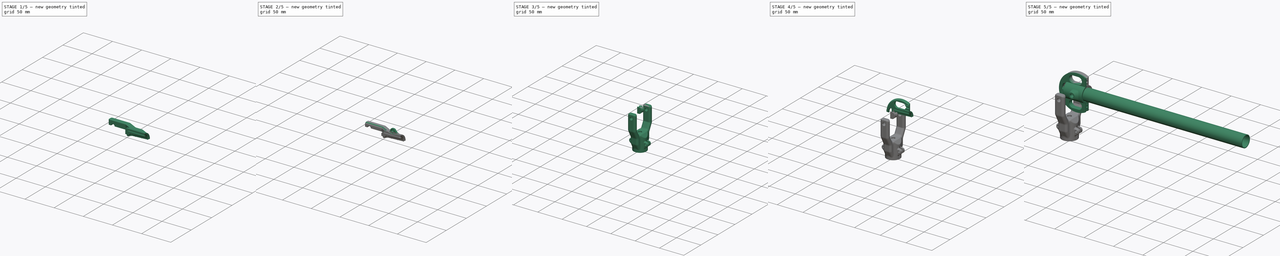
[diagram: build sequence overview — one tinted view per stage of 5, left to right]
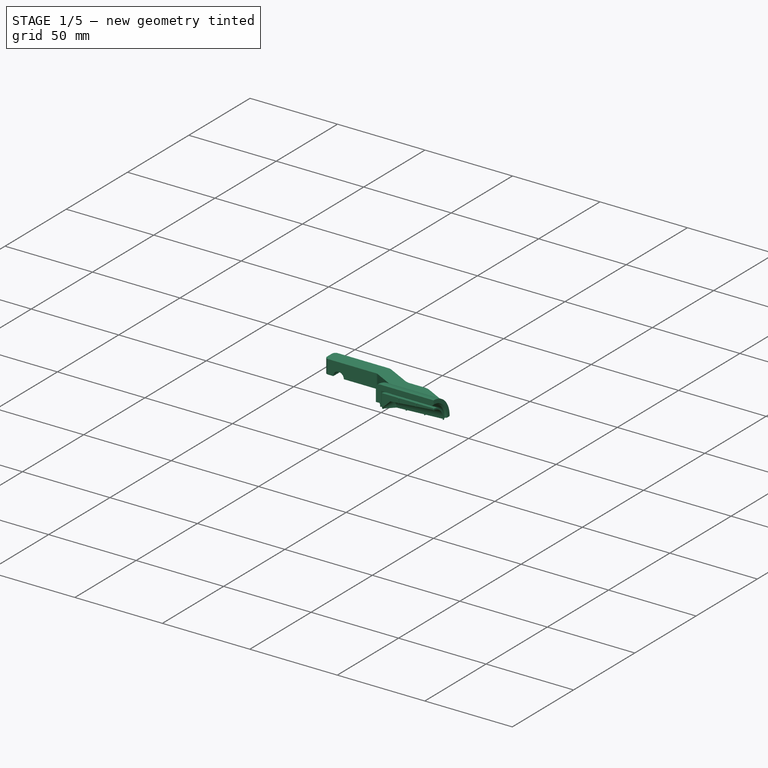
[diagram: stage 1 of 5 — iso view after this stage's code; geometry added in this stage tinted green]
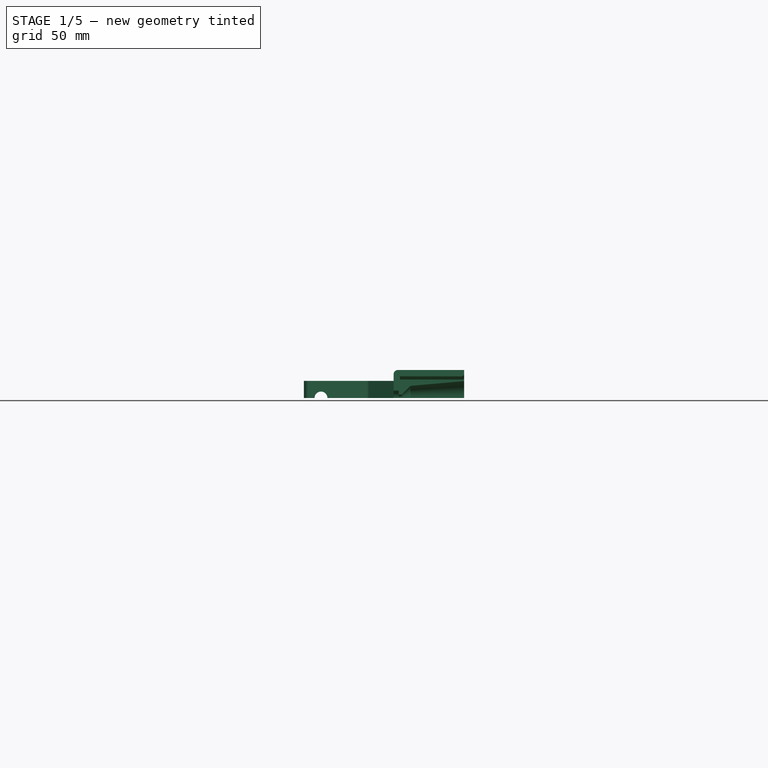
[diagram: stage 1 of 5 — front view after this stage's code; geometry added in this stage tinted green]
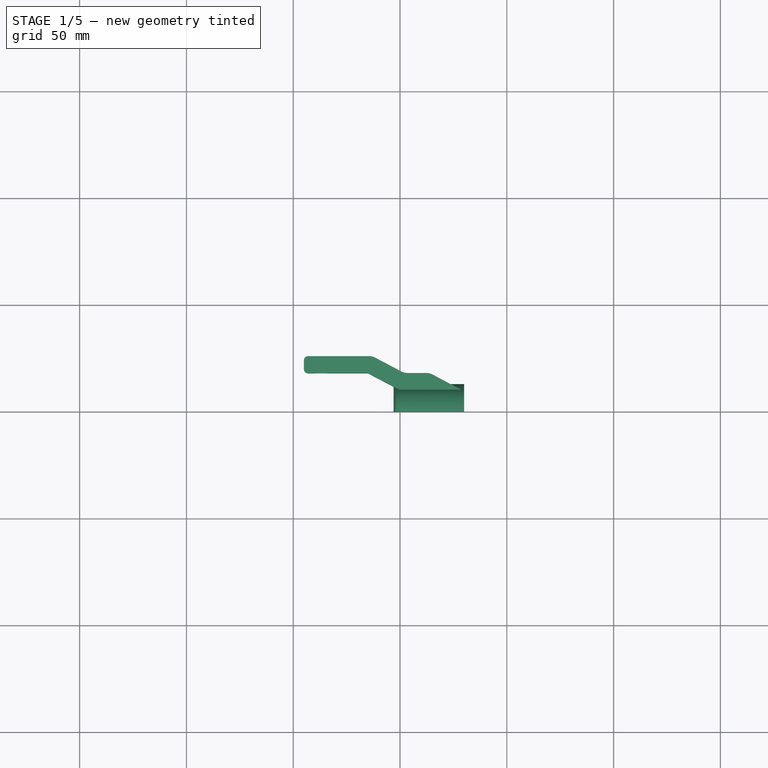
[diagram: stage 1 of 5 — top view after this stage's code; geometry added in this stage tinted green]
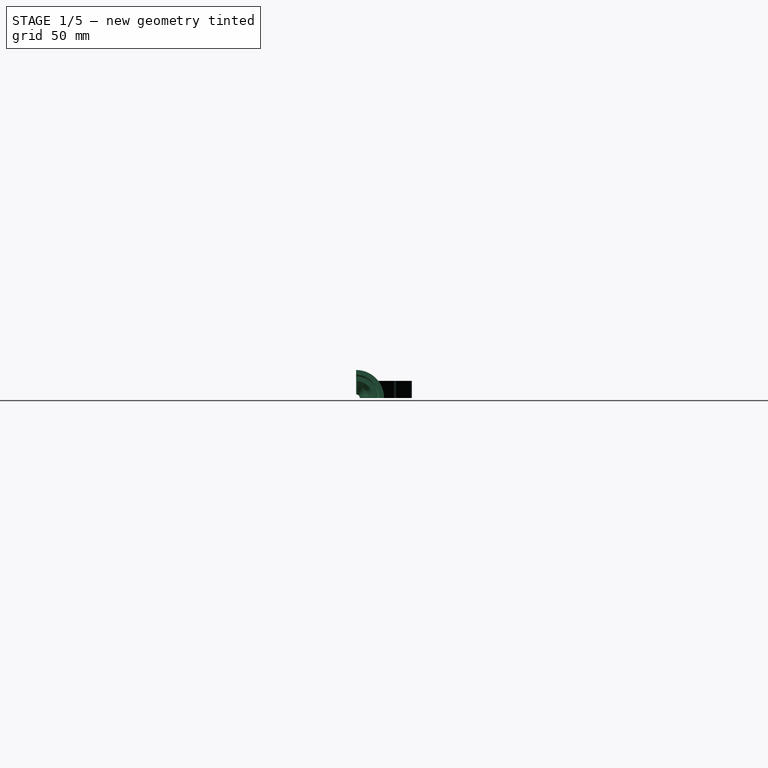
[diagram: stage 1 of 5 — right view after this stage's code; geometry added in this stage tinted green]
FCSTD DOCUMENT  (FreeCAD 1.0R39109 (Git))
Label: tube_cap
License: Creative Commons Attribution 4.0
LicenseURL: https://creativecommons.org/licenses/by/4.0/
objects: Sketcher::SketchObject×24, PartDesign::Pocket×13, PartDesign::Body×9, PartDesign::Pad×5, PartDesign::Fillet×5, PartDesign::Revolution×4, PartDesign::Mirrored×4, PartDesign::FeatureBase×4, PartDesign::MultiTransform×2, App::VarSet×1, PartDesign::Groove×1, PartDesign::AdditiveLoft×1
note: 164 computed .brp shape members not serialized (recipe doc carries the construction recipe); baked Part::Feature solids carry a one-line shape summary decoded from their .brp

FEATURE [App::VarSet] VarSet
  M3_d = 3.3
  M3_lh = 5.8
  M3_th = 2.7
  cone_angl = 5
  f_rg = 6
  f_rs = 2
  f_wi = 16.6
  j = 0.1
  j_ca_th = 8
  j_cut_r = 6
  j_f_id = 20.2
  j_f_len = 30
  j_f_od = 26.2
  j_m_id = 11.4
  j_m_od = 17.4
  j_pul_d = 60
  j_rot_x = 15
  j_t_d = 19.1
  j_wi = 16.1
  p_re = 3
  p_th = 3
  r = 2
  t_id = 17.6
  t_len = 300
  t_od = 20
  t_th = 1.2
  th = 3
  expr: f_wi = j_wi + 0.5 mm
  expr: j_f_id = t_od + j * 2
  expr: j_f_od = j_f_id + th * 2
  expr: j_m_id = j_m_od - th * 2
  expr: j_m_od = t_id - j * 2
  expr: j_t_d = j_f_od / 2 + j_cut_r
  expr: j_wi = j_f_id / 2 + 6 mm
  expr: t_id = t_od - t_th * 2
FEATURE [Sketcher::SketchObject] Sketch001
  ArcFitTolerance = 1e-06
  AttachmentSupport = -> [XY_Plane001]
  FullyConstrained = true
  MakeInternals = false
  MapMode = 5
  expr: Constraints[10] = VarSet.j_f_od / 2
  expr: Constraints[11] = VarSet.j_f_len
  expr: Constraints[12] = VarSet.th * 1
  expr: Constraints[13] = VarSet.j_f_id / 2
  expr: Constraints[20] = VarSet.r
  expr: Constraints[30] = VarSet.j_m_od / 2
  expr: Constraints[35] = VarSet.j_m_id / 2
  expr: Constraints[36] = 1.7
  sketch-geometry (19):
    g0: LineSegment StartX=4.85388 StartY=5.7 StartZ=0 EndX=30 EndY=7.9 EndZ=0
    g1: LineSegment StartX=30 StartY=7.9 StartZ=0 EndX=30 EndY=8.7 EndZ=0
    g2: LineSegment StartX=30 StartY=8.7 StartZ=0 EndX=0 EndY=8.7 EndZ=0
    g3: LineSegment StartX=0 StartY=8.7 StartZ=0 EndX=0 EndY=10.1 EndZ=0
    g4: LineSegment StartX=0 StartY=10.1 StartZ=0 EndX=29.2 EndY=10.1 EndZ=0
    g5: LineSegment StartX=30 StartY=10.9 StartZ=0 EndX=30 EndY=13.1 EndZ=0
    g6: LineSegment StartX=30 StartY=13.1 StartZ=0 EndX=-1 EndY=13.1 EndZ=0
    g7: LineSegment StartX=-3 StartY=11.1 StartZ=0 EndX=-3 EndY=3.5 EndZ=0
    g8: GeomPoint [constr] X=30 Y=13.1 Z=0
    g9: ArcOfCircle CenterX=-1 CenterY=11.1 CenterZ=0 NormalX=0 NormalY=0 NormalZ=1 AngleXU=0 Radius=2 StartAngle=1.5708 EndAngle=3.14159
    g10: GeomPoint [constr] X=-3 Y=13.1 Z=0
    g11: ArcOfCircle [constr] CenterX=29.2 CenterY=10.9 CenterZ=0 NormalX=0 NormalY=0 NormalZ=1 AngleXU=0 Radius=0.8 StartAngle=4.71239 EndAngle=6.28319
    g12: GeomPoint [constr] X=30 Y=10.1 Z=0
    g13: LineSegment StartX=29.2 StartY=10.1 StartZ=0 EndX=30 EndY=10.9 EndZ=0
    g14: GeomPoint [constr] X=30 Y=8.7 Z=0
    g15: LineSegment StartX=4.85388 StartY=5.7 StartZ=0 EndX=0.853885 EndY=1.7 EndZ=0
    g16: LineSegment StartX=0.853885 StartY=1.7 StartZ=0 EndX=-0.6 EndY=1.7 EndZ=0
    g17: LineSegment StartX=-3 StartY=3.5 StartZ=0 EndX=-0.6 EndY=3.5 EndZ=0
    g18: LineSegment StartX=-0.6 StartY=3.5 StartZ=0 EndX=-0.6 EndY=1.7 EndZ=0
  constraints (51):
    c: PointOnObject(g2,g-2)
    c: Horizontal(g2)
    c: Coincident(g3,g2)
    c: PointOnObject(g3,g-2)
    c: Coincident(g4,g3)
    c: Horizontal(g4)
    c: Horizontal(g6)
    c: Vertical(g7)
    c: Vertical(g8,g12)
    c: Vertical(g1)
    c: DistanceY(g-1,g10) = 13.1
    c: DistanceX(g-1,g8) = 30
    c: DistanceX(g10,g-1) = 3
    c: DistanceY(g-1,g12) = 10.1
    c: PointOnObject(g8,g6)
    c: PointOnObject(g8,g5)
    c: PointOnObject(g10,g6)
    c: PointOnObject(g10,g7)
    c: Tangent(g6,g9) = -1.5708
    c: Tangent(g7,g9) = -1.5708
    c: Radius(g9) = 2
    c: PointOnObject(g12,g4)
    c: PointOnObject(g12,g5)
    c: Tangent(g4,g11) = -1.5708
    c: Tangent(g5,g11) = -1.5708
    c: Coincident(g13,g4)
    c: Coincident(g13,g5)
    c: Radius(g11) = 0.8
    c: Coincident(g0,g1)
    c: Vertical(g14,g8)
    c: DistanceY(g-1,g14) = 8.7
    c: PointOnObject(g14,g2)
    c: PointOnObject(g14,g1)
    c: Coincident(g16,g15)
    c: Horizontal(g16)
    c: DistanceY(g-1,g15) = 5.7
    c: DistanceY(g-1,g15) = 1.7
    c: Coincident(g2,g1)
    c: PointOnObject(g6,g5)
    c: PointOnObject(g5,g6)
    c: Distance(g1,g1) = 0.8
    c: Angle(g15,g-2) = 0.785398
    c: Angle(g2,g0) = 0.0872665
    c: Coincident(g15,g0)
    c: Horizontal(g17)
    c: Coincident(g18,g17)
    c: Vertical(g18)
    c: Coincident(g16,g18)
    c: DistanceY(g-1,g7) = 3.5
    c: Distance(g17,g17) = 2.4
    c: Coincident(g17,g7)
FEATURE [PartDesign::Revolution] Revolution
  Angle = 90
  Angle2 = 60
  Axis = (1,0,0)
  Base = (0,0,0)
  Profile = -> Sketch001
  ReferenceAxis = -> Sketch001 [H_Axis]
  Refine = true
  Suppressed = false
  Type = 0
FEATURE [PartDesign::Body] Body002  label="lockingcone"
  AllowCompound = false
  Group = -> [Sketch003,Revolution001,Sketch004,Pocket001]
  Origin = -> Origin004
  Placement = pos=(7,0,0) rot=(0,0,1;0rad)
  Tip = -> Pocket001
FEATURE [PartDesign::Pocket] Pocket
  BaseFeature = -> Revolution
  Direction = (-1,0,0)
  Length = 9.7
  Length2 = 5
  Profile = -> Sketch002
  ReferenceAxis = -> Sketch002 [N_Axis]
  Refine = true
  Reversed = true
  Suppressed = false
  Type = 0
  expr: Length = VarSet.j_f_len / 3 - 0.3 mm
FEATURE [PartDesign::Body] Body009  label="puley"
  AllowCompound = false
  Group = -> [Sketch024,Revolution003]
  Origin = -> Origin014
  Tip = -> Revolution003
FEATURE [Sketcher::SketchObject] Sketch027
  ArcFitTolerance = 1e-06
  AttachmentSupport = -> [XZ_Plane008]
  FullyConstrained = true
  MakeInternals = false
  MapMode = 5
  Placement = pos=(0,0,0) rot=(1,0,0;1.5708rad)
  sketch-geometry (2):
    g0: ArcOfCircle CenterX=-37 CenterY=0 CenterZ=0 NormalX=0 NormalY=0 NormalZ=1 AngleXU=0 Radius=3 StartAngle=0 EndAngle=3.14159
    g1: LineSegment StartX=-40 StartY=4e-16 StartZ=0 EndX=-34 EndY=4e-16 EndZ=0
  constraints (7):
    c: PointOnObject(g0,g-1)
    c: Horizontal(g1)
    c: Coincident(g0,g1)
    c: Coincident(g0,g1)
    c: PointOnObject(g0,g1)
    c: Radius(g0) = 3
    c: DistanceX(g-4,g0) = 8
FEATURE [PartDesign::Mirrored] Mirrored002
  MirrorPlane = -> YZ_Plane010
  Placement = pos=(9.8e-15,0,-44) rot=(0,1,0;1.5708rad)
  Refine = true
  Suppressed = false
  TransformMode = 0
FEATURE [PartDesign::Mirrored] Mirrored003
  MirrorPlane = -> XZ_Plane010
  Placement = pos=(9.8e-15,0,-44) rot=(0,1,0;1.5708rad)
  Refine = true
  Suppressed = false
  TransformMode = 0
FEATURE [Sketcher::SketchObject] Sketch028
  ArcFitTolerance = 1e-06
  AttachmentOffset = pos=(0,0,10) rot=(0,0,1;0rad)
  AttachmentSupport = -> [YZ_Plane001]
  FullyConstrained = true
  MakeInternals = false
  MapMode = 5
  Placement = pos=(10,0,0) rot=(0.57735,0.57735,0.57735;2.0944rad)
  expr: .AttachmentOffset.Base.z = VarSet.j_f_len / 3
  sketch-geometry (6):
    g0: LineSegment StartX=0 StartY=0 StartZ=0 EndX=0 EndY=9.7 EndZ=0
    g1: LineSegment StartX=0 StartY=9.7 StartZ=0 EndX=0.5 EndY=9.7 EndZ=0
    g2: LineSegment StartX=0.5 StartY=9.7 StartZ=0 EndX=0.5 EndY=0.5 EndZ=0
    g3: LineSegment StartX=0.5 StartY=0.5 StartZ=0 EndX=9.7 EndY=0.5 EndZ=0
    g4: LineSegment StartX=9.7 StartY=0.5 StartZ=0 EndX=9.7 EndY=0 EndZ=0
    g5: LineSegment StartX=9.7 StartY=0 StartZ=0 EndX=0 EndY=0 EndZ=0
  constraints (17):
    c: Coincident(g-1,g0)
    c: PointOnObject(g0,g-2)
    c: Coincident(g0,g1)
    c: Horizontal(g1)
    c: Coincident(g1,g2)
    c: Vertical(g2)
    c: Coincident(g2,g3)
    c: Horizontal(g3)
    c: Coincident(g3,g4)
    c: Vertical(g4)
    c: PointOnObject(g5,g-1)
    c: Coincident(g5,g0)
    c: Distance(g1,g1) = 0.5
    c: DistanceY(g0,g0) = 9.7
    c: Coincident(g4,g5)
    c: Equal(g1,g4)
    c: Equal(g0,g5)
FEATURE [PartDesign::Pocket] Pocket014
  BaseFeature = -> Pocket
  Direction = (-1,0,0)
  Length = 9.7
  Length2 = 5
  Profile = -> Sketch028
  ReferenceAxis = -> Sketch028 [N_Axis]
  Refine = true
  Reversed = true
  Suppressed = false
  Type = 0
  expr: Length = VarSet.j_f_len / 3 - 0.3 mm
FEATURE [Sketcher::SketchObject] Sketch029
  ArcFitTolerance = 1e-06
  AttachmentOffset = pos=(0,0,20) rot=(0,0,1;0rad)
  AttachmentSupport = -> [YZ_Plane001]
  FullyConstrained = true
  MakeInternals = false
  MapMode = 5
  Placement = pos=(20,0,0) rot=(0.57735,0.57735,0.57735;2.0944rad)
  expr: .AttachmentOffset.Base.z = 2 * VarSet.j_f_len / 3
  sketch-geometry (6):
    g0: LineSegment StartX=0 StartY=0 StartZ=0 EndX=0 EndY=9.7 EndZ=0
    g1: LineSegment StartX=0 StartY=9.7 StartZ=0 EndX=0.5 EndY=9.7 EndZ=0
    g2: LineSegment StartX=0.5 StartY=9.7 StartZ=0 EndX=0.5 EndY=0.5 EndZ=0
    g3: LineSegment StartX=0.5 StartY=0.5 StartZ=0 EndX=9.7 EndY=0.5 EndZ=0
    g4: LineSegment StartX=9.7 StartY=0.5 StartZ=0 EndX=9.7 EndY=0 EndZ=0
    g5: LineSegment StartX=9.7 StartY=0 StartZ=0 EndX=0 EndY=0 EndZ=0
  constraints (17):
    c: Coincident(g-1,g0)
    c: PointOnObject(g0,g-2)
    c: Coincident(g0,g1)
    c: Horizontal(g1)
    c: Coincident(g1,g2)
    c: Vertical(g2)
    c: Coincident(g2,g3)
    c: Horizontal(g3)
    c: Coincident(g3,g4)
    c: Vertical(g4)
    c: PointOnObject(g5,g-1)
    c: Coincident(g5,g0)
    c: Distance(g1,g1) = 0.5
    c: DistanceY(g0,g0) = 9.7
    c: Coincident(g4,g5)
    c: Equal(g1,g4)
    c: Equal(g0,g5)
FEATURE [PartDesign::Pocket] Pocket015
  BaseFeature = -> Pocket014
  Direction = (-1,0,0)
  Length = 9.7
  Length2 = 5
  Profile = -> Sketch029
  ReferenceAxis = -> Sketch029 [N_Axis]
  Refine = true
  Reversed = true
  Suppressed = false
  Type = 0
  expr: Length = VarSet.j_f_len / 3 - 0.3 mm
FEATURE [PartDesign::Body] Body007  label="Cable_Junction_Full"
  AllowCompound = false
  Group = -> [Clone001,MultiTransform,Mirrored,Mirrored001,Sketch021,Pocket011]
  Origin = -> Origin012
  Tip = -> Pocket011
FEATURE [PartDesign::FeatureBase] Clone002
  BaseFeature = -> Body001
  Suppressed = false
FEATURE [PartDesign::Pad] Pad007
  BaseFeature = -> Clone002
  Direction = (0,0,1)
  Length = 8
  Length2 = 10
  Profile = -> Sketch023
  ReferenceAxis = -> Sketch023 [N_Axis]
  Refine = true
  Suppressed = false
  Type = 0
FEATURE [Sketcher::SketchObject] Sketch026
  ArcFitTolerance = 1e-06
  AttachmentOffset = pos=(0,0,-1.8) rot=(0,0,1;0rad)
  AttachmentSupport = -> [XZ_Plane008]
  ExternalGeometry = -> [Pad007]
  FullyConstrained = true
  MakeInternals = false
  MapMode = 5
  Placement = pos=(0,1.8,-4e-16) rot=(1,0,0;1.5708rad)
  expr: .AttachmentOffset.Base.z = -(VarSet.p_th / 2 + 0.3 mm)
  expr: Constraints[14] = VarSet.j_f_len - 14 mm
  expr: Constraints[19] = VarSet.M3_d
  sketch-geometry (9):
    g0: LineSegment StartX=11 StartY=7.9 StartZ=0 EndX=11 EndY=15.1 EndZ=0
    g1: LineSegment StartX=15 StartY=19.1 StartZ=0 EndX=15.9091 EndY=19.1 EndZ=0
    g2: LineSegment StartX=19 StartY=17.639 StartZ=0 EndX=27 EndY=7.9 EndZ=0
    g3: LineSegment StartX=27 StartY=7.9 StartZ=0 EndX=11 EndY=7.9 EndZ=0
    g4: ArcOfCircle CenterX=15 CenterY=15.1 CenterZ=0 NormalX=0 NormalY=0 NormalZ=1 AngleXU=0 Radius=4 StartAngle=1.5708 EndAngle=3.14159
    g5: GeomPoint [constr] X=11 Y=19.1 Z=0
    g6: ArcOfCircle CenterX=15.9091 CenterY=15.1 CenterZ=0 NormalX=0 NormalY=0 NormalZ=1 AngleXU=0 Radius=4 StartAngle=0.687679 EndAngle=1.5708
    g7: GeomPoint [constr] X=17.7999 Y=19.1 Z=0
    g8: Circle CenterX=15 CenterY=15.1 CenterZ=0 NormalX=0 NormalY=0 NormalZ=1 AngleXU=0 Radius=1.65
  constraints (23):
    c: Vertical(g0)
    c: Horizontal(g1)
    c: Coincident(g2,g3)
    c: Coincident(g3,g0)
    c: Horizontal(g3)
    c: PointOnObject(g5,g1)
    c: PointOnObject(g5,g0)
    c: Tangent(g1,g4) = 1.5708
    c: Tangent(g0,g4) = 1.5708
    c: PointOnObject(g7,g1)
    c: PointOnObject(g7,g2)
    c: Tangent(g1,g6) = 1.5708
    c: Tangent(g2,g6) = 1.5708
    c: Equal(g4,g6)
    c: DistanceX(g3,g3) = 16
    c: DistanceX(g0,g2) = 8
    c: PointOnObject(g2,g-3)
    c: Radius(g4) = 4
    c: DistanceX(g-4,g0) = 14
    c: Diameter(g8) = 3.3
    c: DistanceY(g-5,g8) = 2
    c: DistanceX(g0,g8) = 4
    c: DistanceY(g8,g1) = 4
FEATURE [PartDesign::Pocket] Pocket013
  BaseFeature = -> Pad007
  Direction = (0,1,-2e-16)
  Length = 5
  Length2 = 5
  Profile = -> Sketch027
  ReferenceAxis = -> Sketch027 [N_Axis]
  Refine = true
  Suppressed = false
  Type = 1
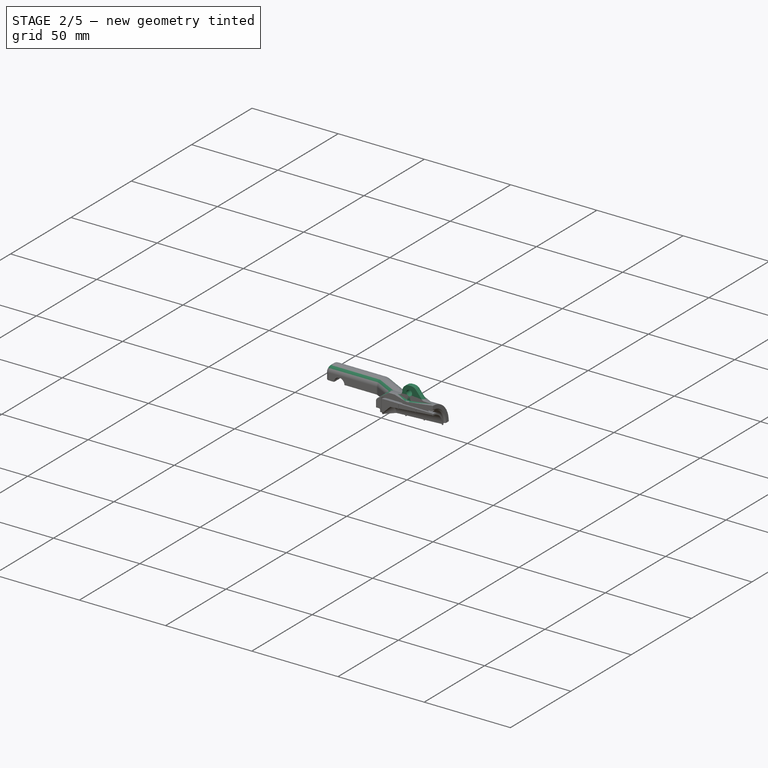
[diagram: stage 2 of 5 — iso view after this stage's code; geometry added in this stage tinted green]
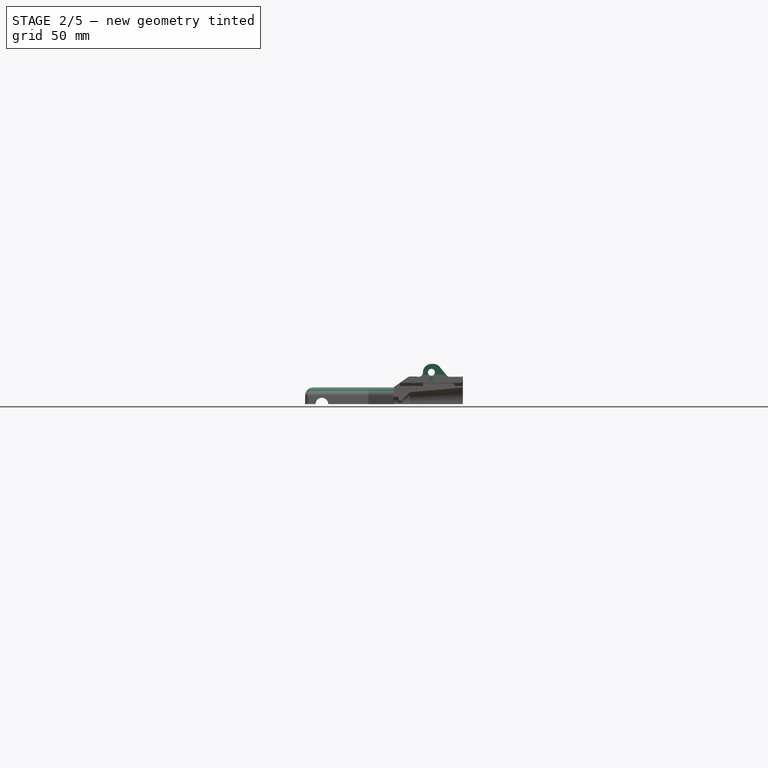
[diagram: stage 2 of 5 — front view after this stage's code; geometry added in this stage tinted green]
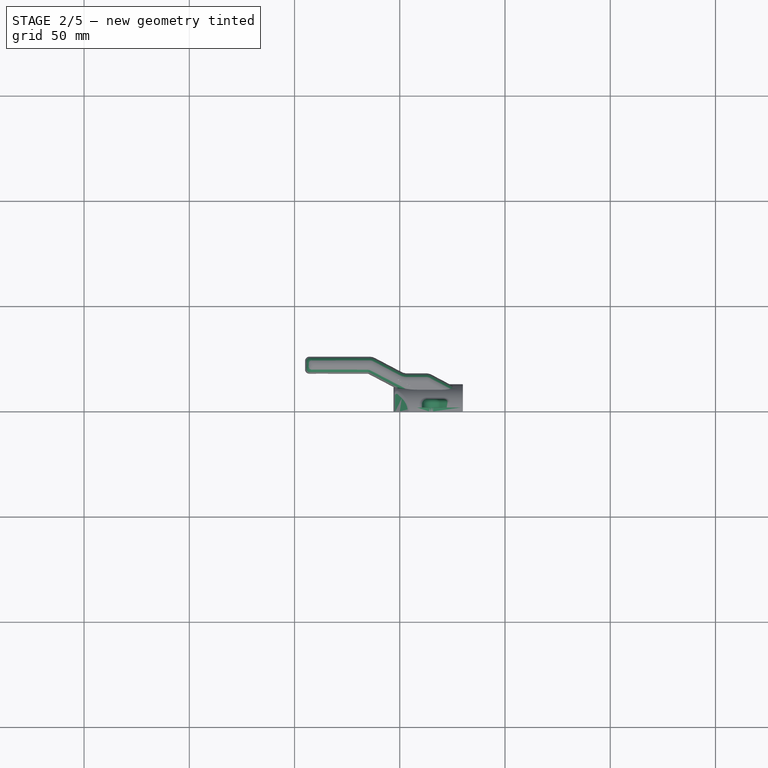
[diagram: stage 2 of 5 — top view after this stage's code; geometry added in this stage tinted green]
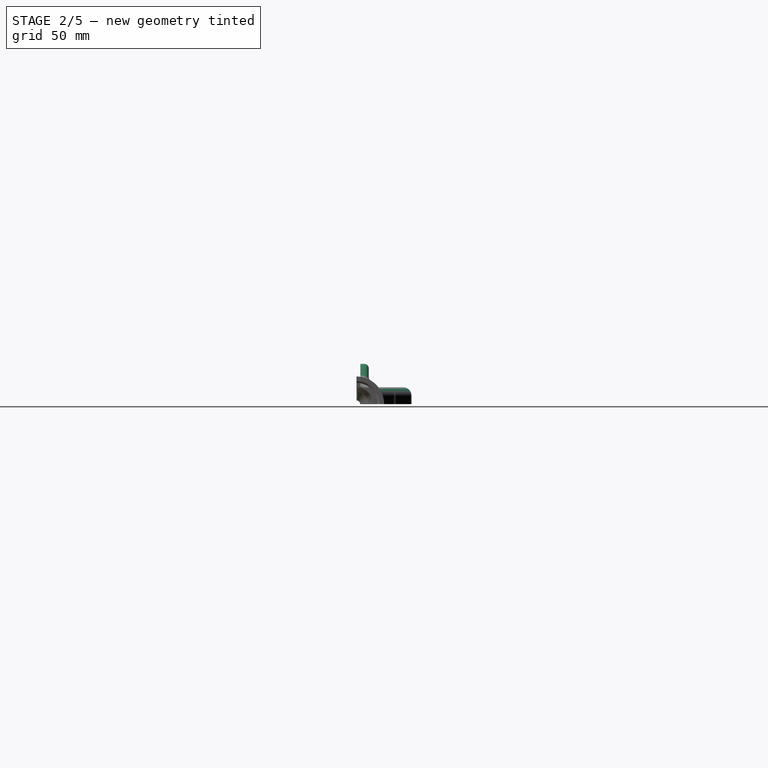
[diagram: stage 2 of 5 — right view after this stage's code; geometry added in this stage tinted green]
FEATURE [PartDesign::Pad] Pad008
  BaseFeature = -> Pocket013
  Direction = (0,-1,2e-16)
  Length = 4
  Length2 = 10
  Profile = -> Sketch026
  ReferenceAxis = -> Sketch026 [N_Axis]
  Refine = true
  Reversed = true
  Suppressed = false
  Type = 0
FEATURE [Sketcher::SketchObject] Sketch030
  ArcFitTolerance = 1e-06
  AttachmentOffset = pos=(0,0,-1.8) rot=(0,0,1;0rad)
  AttachmentSupport = -> [XZ_Plane008]
  ExternalGeometry = -> [Pad008]
  FullyConstrained = true
  MakeInternals = false
  MapMode = 5
  Placement = pos=(0,1.8,-4e-16) rot=(1,0,0;1.5708rad)
  expr: .AttachmentOffset.Base.z = -(VarSet.p_th / 2 + 0.3 mm)
  sketch-geometry (7):
    g0: ArcOfCircle CenterX=15 CenterY=15.1 CenterZ=0 NormalX=0 NormalY=0 NormalZ=1 AngleXU=0 Radius=4 StartAngle=1.16629 EndAngle=2.41073
    g1: LineSegment StartX=15.8351 StartY=11.1881 StartZ=0 EndX=29.8351 EndY=13.1 EndZ=0
    g2: LineSegment StartX=29.8351 StartY=13.1 StartZ=0 EndX=16.5743 EndY=18.7772 EndZ=0
    g3: ArcOfCircle CenterX=15 CenterY=15.1 CenterZ=0 NormalX=0 NormalY=0 NormalZ=1 AngleXU=0 Radius=4 StartAngle=4.41687 EndAngle=4.9227
    g4: LineSegment StartX=12.0216 StartY=17.77 StartZ=0 EndX=7.83505 EndY=13.1 EndZ=0
    g5: LineSegment StartX=7.83505 StartY=13.1 StartZ=0 EndX=13.8351 EndY=11.2734 EndZ=0
    g6: LineSegment [constr] StartX=-1 StartY=13.1 StartZ=0 EndX=30 EndY=13.1 EndZ=0
  constraints (17):
    c: Coincident(g0,g-3)
    c: Diameter(g0) = 8
    c: Coincident(g2,g1)
    c: DistanceX(g1,g1) = 14
    c: Tangent(g0,g2) = -1.5708
    c: Coincident(g3,g1) = -1.5708
    c: Equal(g3,g0)
    c: Coincident(g5,g4)
    c: Tangent(g4,g0) = -1.5708
    c: Tangent(g5,g3) = -1.5708
    c: Coincident(g3,g0)
    c: DistanceX(g4,g1) = 8
    c: DistanceX(g4,g3) = 6
    c: Coincident(g6,g-4)
    c: Coincident(g6,g-5)
    c: PointOnObject(g4,g6)
    c: PointOnObject(g1,g6)
FEATURE [PartDesign::Pocket] Pocket016
  BaseFeature = -> Pad008
  Direction = (0,1,-2e-16)
  Length = 5
  Length2 = 5
  Profile = -> Sketch030
  ReferenceAxis = -> Sketch030 [N_Axis]
  Refine = true
  Reversed = true
  Suppressed = false
  Type = 0
FEATURE [Sketcher::SketchObject] Sketch031
  ArcFitTolerance = 1e-06
  AttachmentSupport = -> [XZ_Plane008]
  ExternalGeometry = -> [Pocket016]
  FullyConstrained = true
  MakeInternals = false
  MapMode = 5
  Placement = pos=(0,0,0) rot=(1,0,0;1.5708rad)
  sketch-geometry (3):
    g0: LineSegment StartX=-9.42578 StartY=3.5 StartZ=0 EndX=4.28444 EndY=13.1 EndZ=0
    g1: LineSegment StartX=4.28444 StartY=13.1 StartZ=0 EndX=-9.42578 EndY=13.1 EndZ=0
    g2: LineSegment StartX=-9.42578 StartY=13.1 StartZ=0 EndX=-9.42578 EndY=3.5 EndZ=0
  constraints (9):
    c: PointOnObject(g0,g-4)
    c: PointOnObject(g0,g-5)
    c: Coincident(g1,g0)
    c: Horizontal(g1)
    c: Coincident(g2,g1)
    c: Coincident(g2,g0)
    c: Vertical(g2)
    c: PointOnObject(g-3,g0)
    c: Angle(g1,g0) = 0.610865
FEATURE [PartDesign::Pocket] Pocket017
  BaseFeature = -> Pocket016
  Direction = (0,1,-2e-16)
  Length = 10
  Length2 = 5
  Profile = -> Sketch031
  ReferenceAxis = -> Sketch031 [N_Axis]
  Refine = true
  Suppressed = false
  Type = 0
FEATURE [PartDesign::Fillet] Fillet
  Base = -> Pocket017 [Edge135]
  BaseFeature = -> Pocket017
  Radius = 2
  Refine = true
  SupportTransform = false
  Suppressed = false
  UseAllEdges = false
FEATURE [PartDesign::Fillet] Fillet001
  Base = -> Fillet [Edge210]
  BaseFeature = -> Fillet
  Radius = 2
  Refine = true
  SupportTransform = false
  Suppressed = false
  UseAllEdges = false
FEATURE [PartDesign::Fillet] Fillet002
  Base = -> Fillet001 [Edge1]
  BaseFeature = -> Fillet001
  Radius = 2
  Refine = true
  SupportTransform = false
  Suppressed = false
  UseAllEdges = false
FEATURE [PartDesign::Fillet] Fillet003
  Base = -> Fillet002 [Edge57]
  BaseFeature = -> Fillet002
  Radius = 4
  Refine = true
  SupportTransform = false
  Suppressed = false
  UseAllEdges = false
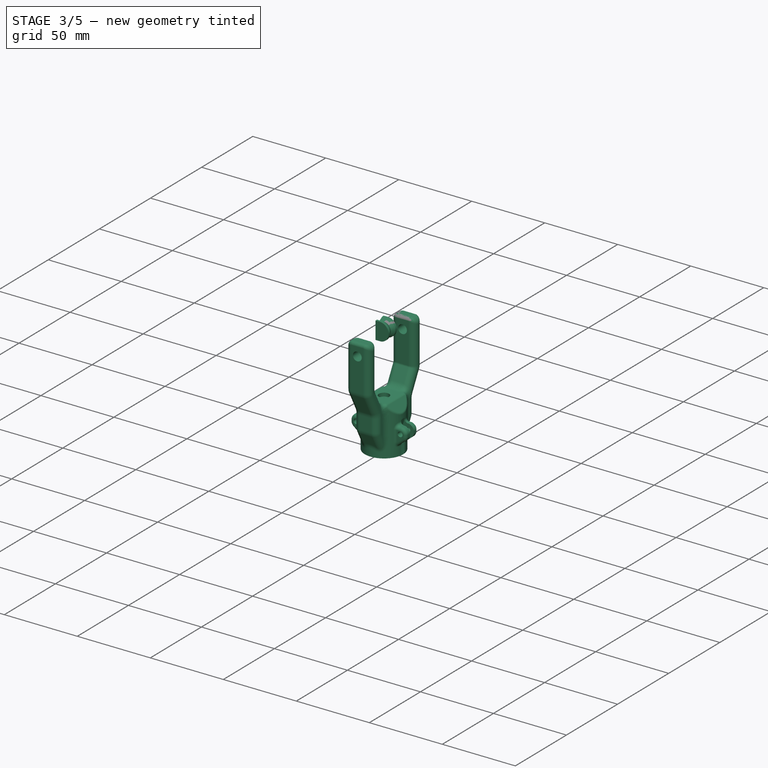
[diagram: stage 3 of 5 — iso view after this stage's code; geometry added in this stage tinted green]
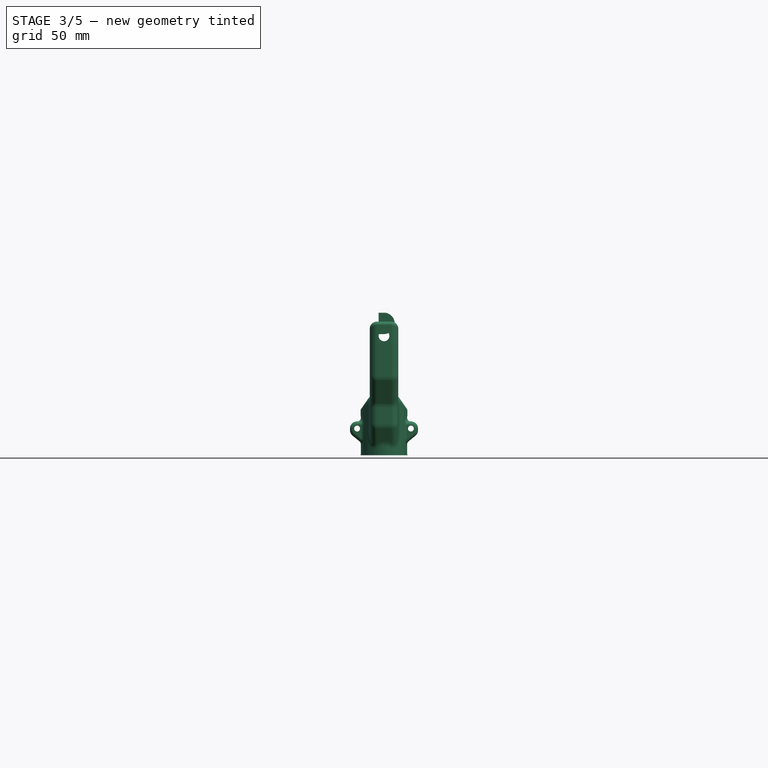
[diagram: stage 3 of 5 — front view after this stage's code; geometry added in this stage tinted green]
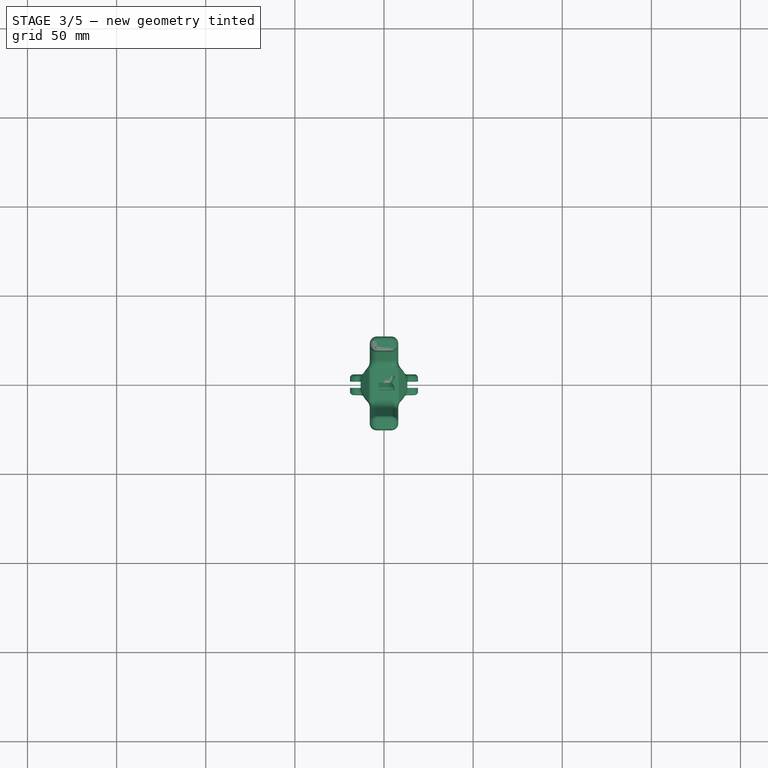
[diagram: stage 3 of 5 — top view after this stage's code; geometry added in this stage tinted green]
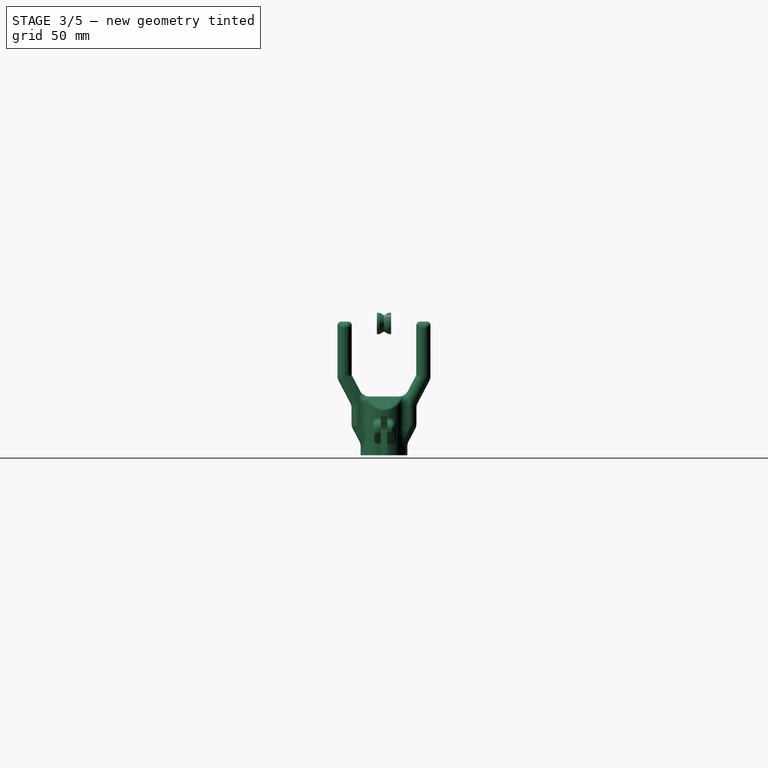
[diagram: stage 3 of 5 — right view after this stage's code; geometry added in this stage tinted green]
FEATURE [Sketcher::SketchObject] Sketch007
  ArcFitTolerance = 1e-06
  AttachmentSupport = -> [XZ_Plane003]
  FullyConstrained = true
  MakeInternals = false
  MapMode = 5
  Placement = pos=(0,0,0) rot=(1,0,0;1.5708rad)
  expr: Constraints[0] = VarSet.j_rot_x
  expr: Constraints[11] = VarSet.j_f_id / 2 + 0.1 mm
  expr: Constraints[33] = VarSet.j_f_od / 2
  expr: Constraints[34] = VarSet.j_cut_r
  expr: Constraints[5] = VarSet.j_f_len
  expr: Constraints[8] = VarSet.th
  sketch-geometry (14):
    g0: ArcOfCircle CenterX=15 CenterY=0 CenterZ=0 NormalX=0 NormalY=0 NormalZ=1 AngleXU=0 Radius=30 StartAngle=1.0472 EndAngle=3.14159
    g1: LineSegment StartX=30 StartY=10.2 StartZ=0 EndX=-3 EndY=10.2 EndZ=0
    g2: LineSegment StartX=30 StartY=25.9808 StartZ=0 EndX=30 EndY=10.2 EndZ=0
    g3: LineSegment StartX=-15 StartY=3.7e-15 StartZ=0 EndX=-10 EndY=0 EndZ=0
    g4: Circle [constr] CenterX=-10 CenterY=0 CenterZ=0 NormalX=0 NormalY=0 NormalZ=1 AngleXU=0 Radius=1
    g5: Circle [constr] CenterX=-10 CenterY=10.2 CenterZ=0 NormalX=0 NormalY=0 NormalZ=1 AngleXU=0 Radius=1
    g6: Circle [constr] CenterX=-3 CenterY=10.2 CenterZ=0 NormalX=0 NormalY=0 NormalZ=1 AngleXU=0 Radius=1
    g7: BSplineCurve PolesCount=3 KnotsCount=2 Degree=2 IsPeriodic=0
    g8: GeomPoint [constr] X=-10 Y=0 Z=0
    g9: GeomPoint [constr] X=-3 Y=10.2 Z=0
    g10: ArcOfCircle CenterX=8 CenterY=19.1 CenterZ=0 NormalX=0 NormalY=0 NormalZ=1 AngleXU=0 Radius=6 StartAngle=1.5708 EndAngle=4.71239
    g11: ArcOfCircle CenterX=18 CenterY=19.1 CenterZ=0 NormalX=0 NormalY=0 NormalZ=1 AngleXU=0 Radius=6 StartAngle=4.71239 EndAngle=7.85398
    g12: LineSegment StartX=8 StartY=25.1 StartZ=0 EndX=18 EndY=25.1 EndZ=0
    g13: LineSegment StartX=8 StartY=13.1 StartZ=0 EndX=18 EndY=13.1 EndZ=0
  constraints (36):
    c: DistanceX(g-1,g0) = 15
    c: Diameter(g0) = 60
    c: Coincident(g1,g2)
    c: Coincident(g2,g0)
    c: Horizontal(g1)
    c: DistanceX(g-1,g1) = 30
    c: Vertical(g2)
    c: PointOnObject(g0,g-1)
    c: DistanceX(g1,g-1) = 3
    c: Coincident(g0,g3)
    c: PointOnObject(g0,g-1)
    c: DistanceY(g-1,g1) = 10.2
    c: PointOnObject(g3,g-1)
    c: DistanceX(g3,g3) = 5
    c: Weight(g4) = 1
    c: Equal(g4,g5)
    c: Equal(g4,g6)
    c: InternalAlignment(g4,g7)
    c: InternalAlignment(g5,g7)
    c: InternalAlignment(g6,g7)
    c: InternalAlignment(g8,g7)
    c: InternalAlignment(g9,g7)
    c: Coincident(g4,g3)
    c: Coincident(g6,g1)
    c: Vertical(g7,g5)
    c: Horizontal(g5,g7)
    c: Tangent(g10,g12) = 1.5708
    c: Tangent(g10,g13) = -1.5708
    c: Tangent(g11,g12) = 1.5708
    c: Tangent(g11,g13) = -1.5708
    c: Equal(g10,g11)
    c: Horizontal(g12)
    c: Distance(g11,g2) = 6
    c: DistanceY(g-1,g11) = 13.1
    c: Radius(g11) = 6
    c: DistanceX(g10,g0) = 7
FEATURE [Sketcher::SketchObject] Sketch008
  ArcFitTolerance = 1e-06
  AttachmentOffset = pos=(0,0,-10.1) rot=(0,0,1;0rad)
  AttachmentSupport = -> [XZ_Plane003]
  FullyConstrained = true
  MakeInternals = false
  MapMode = 5
  Placement = pos=(0,10.1,-2.2e-15) rot=(1,0,0;1.5708rad)
  expr: .AttachmentOffset.Base.z = -VarSet.j_f_id / 2
  expr: Constraints[5] = VarSet.j_rot_x
  sketch-geometry (4):
    g0: ArcOfCircle CenterX=15 CenterY=0 CenterZ=0 NormalX=0 NormalY=0 NormalZ=1 AngleXU=0 Radius=8 StartAngle=1.5708 EndAngle=3.14159
    g1: ArcOfCircle CenterX=21 CenterY=-1.1e-15 CenterZ=0 NormalX=0 NormalY=0 NormalZ=1 AngleXU=0 Radius=8 StartAngle=1e-16 EndAngle=1.5708
    g2: LineSegment StartX=15 StartY=8 StartZ=0 EndX=21 EndY=8 EndZ=0
    g3: LineSegment StartX=7 StartY=0 StartZ=0 EndX=29 EndY=0 EndZ=0
  constraints (12):
    c: Tangent(g0,g2) = 1.5708
    c: Tangent(g1,g2) = 1.5708
    c: Equal(g0,g1)
    c: PointOnObject(g0,g-1)
    c: Radius(g0) = 8
    c: Distance(g0,g-1) = 15
    c: Coincident(g1,g3)
    c: PointOnObject(g0,g-1)
    c: Horizontal(g2)
    c: Horizontal(g3)
    c: Coincident(g3,g0)
    c: DistanceX(g-1,g1) = 21
FEATURE [Sketcher::SketchObject] Sketch014
  ArcFitTolerance = 1e-06
  AttachmentSupport = -> [YZ_Plane004]
  FullyConstrained = true
  MakeInternals = false
  MapMode = 5
  Placement = pos=(0,0,0) rot=(0.57735,0.57735,0.57735;2.0944rad)
  sketch-geometry (7):
    g0: LineSegment StartX=-4 StartY=0 StartZ=0 EndX=4 EndY=0 EndZ=0
    g1: LineSegment StartX=4 StartY=0 StartZ=0 EndX=4 EndY=6 EndZ=0
    g2: LineSegment StartX=-4 StartY=6 StartZ=0 EndX=-4 EndY=0 EndZ=0
    g3: LineSegment StartX=-4 StartY=6 StartZ=0 EndX=-2.5 EndY=6 EndZ=0
    g4: LineSegment StartX=-2.5 StartY=6 StartZ=0 EndX=0 EndY=4.55662 EndZ=0
    g5: LineSegment StartX=0 StartY=4.55662 StartZ=0 EndX=2.5 EndY=6 EndZ=0
    g6: LineSegment StartX=4 StartY=6 StartZ=0 EndX=2.5 EndY=6 EndZ=0
  constraints (21):
    c: PointOnObject(g0,g-1)
    c: PointOnObject(g0,g-1)
    c: Coincident(g1,g0)
    c: Vertical(g1)
    c: Coincident(g2,g0)
    c: Vertical(g2)
    c: Equal(g1,g2)
    c: DistanceX(g0,g0) = 8
    c: DistanceY(g-1,g2) = 6
    c: Coincident(g2,g3)
    c: Horizontal(g3)
    c: Coincident(g3,g4)
    c: PointOnObject(g4,g-2)
    c: Coincident(g4,g5)
    c: Coincident(g1,g6)
    c: Coincident(g6,g5)
    c: Horizontal(g6)
    c: Angle(g5,g4) = 2.0944
    c: DistanceX(g3,g3) = 1.5
    c: Equal(g3,g6)
    c: Equal(g4,g5)
FEATURE [PartDesign::Revolution] Revolution002
  Angle = 180
  Angle2 = 60
  Axis = (0,1,0)
  Base = (0,0,0)
  Placement = pos=(0,0,0) rot=(1,1,1;2.0944rad)
  Profile = -> Sketch014
  ReferenceAxis = -> Sketch014 [H_Axis]
  Refine = true
  Suppressed = false
  Type = 0
FEATURE [Sketcher::SketchObject] Sketch015
  ArcFitTolerance = 1e-06
  FullyConstrained = true
  MakeInternals = false
  MapMode = 5
  Placement = pos=(-5,1.1e-15,-2.5e-15) rot=(0.57735,0.57735,-0.57735;4.18879rad)
  sketch-geometry (1):
    g0: Circle CenterX=0 CenterY=0 CenterZ=0 NormalX=0 NormalY=0 NormalZ=1 AngleXU=0 Radius=1.65
  constraints (2):
    c: Coincident(g0,g-1)
    c: Diameter(g0) = 3.3
FEATURE [Sketcher::SketchObject] Sketch016
  ArcFitTolerance = 1e-06
  AttachmentOffset = pos=(0,0,30) rot=(0,0,1;0rad)
  AttachmentSupport = -> [YZ_Plane003]
  FullyConstrained = true
  MakeInternals = false
  MapMode = 5
  Placement = pos=(30,0,0) rot=(0.57735,0.57735,0.57735;2.0944rad)
  expr: .AttachmentOffset.Base.x = 0
  expr: .AttachmentOffset.Base.z = VarSet.j_f_len
  expr: Constraints[2] = VarSet.M3_d
  expr: Constraints[6] = VarSet.M3_lh / 2 + 1.6 mm
  expr: Constraints[7] = VarSet.M3_lh / 2 + 1.6 mm
  expr: Constraints[8] = VarSet.j_t_d
  sketch-geometry (3):
    g0: Circle CenterX=0 CenterY=23.6 CenterZ=0 NormalX=0 NormalY=0 NormalZ=1 AngleXU=0 Radius=1
    g1: Circle CenterX=0 CenterY=19.1 CenterZ=0 NormalX=0 NormalY=0 NormalZ=1 AngleXU=0 Radius=1.65
    g2: Circle CenterX=0 CenterY=14.6 CenterZ=0 NormalX=0 NormalY=0 NormalZ=1 AngleXU=0 Radius=1
  constraints (9):
    c: PointOnObject(g0,g-2)
    c: PointOnObject(g1,g-2)
    c: Diameter(g1) = 3.3
    c: Diameter(g0) = 2
    c: Equal(g0,g2)
    c: PointOnObject(g2,g-2)
    c: Distance(g0,g1) = 4.5
    c: DistanceY(g2,g1) = 4.5
    c: DistanceY(g-1,g1) = 19.1
FEATURE [PartDesign::Pocket] Pocket007
  BaseFeature = -> Revolution002
  Direction = (1,-2e-16,-2e-16)
  Length = 7
  Length2 = 5
  Placement = pos=(0,0,0) rot=(1,1,1;2.0944rad)
  Profile = -> Sketch015
  ReferenceAxis = -> Sketch015 [N_Axis]
  Refine = true
  Suppressed = false
  Type = 0
FEATURE [Sketcher::SketchObject] Sketch017
  ArcFitTolerance = 1e-06
  AttachmentOffset = pos=(0,0,-5) rot=(0,0,1;0rad)
  AttachmentSupport = -> [YZ_Plane003]
  FullyConstrained = true
  MakeInternals = false
  MapMode = 5
  Placement = pos=(-5,0,0) rot=(0.57735,0.57735,0.57735;2.0944rad)
  sketch-geometry (3):
    g0: LineSegment StartX=1.1e-15 StartY=2.9 StartZ=0 EndX=1.1e-15 EndY=0 EndZ=0
    g1: LineSegment StartX=1.1e-15 StartY=0 StartZ=0 EndX=2.9 EndY=0 EndZ=0
    g2: ArcOfCircle CenterX=1.1e-15 CenterY=0 CenterZ=0 NormalX=0 NormalY=0 NormalZ=1 AngleXU=0 Radius=2.9 StartAngle=0 EndAngle=1.5708
  constraints (8):
    c: Coincident(g2,g-1)
    c: Coincident(g0,g2)
    c: Vertical(g0)
    c: Coincident(g1,g2)
    c: Horizontal(g1)
    c: Diameter(g2) = 5.8
    c: Coincident(g2,g0)
    c: Coincident(g2,g1)
FEATURE [Sketcher::SketchObject] Sketch018
  ArcFitTolerance = 1e-06
  AttachmentOffset = pos=(0,0,-16.1) rot=(0,0,1;0rad)
  AttachmentSupport = -> [XZ_Plane003]
  FullyConstrained = true
  MakeInternals = false
  MapMode = 5
  Placement = pos=(0,16.1,-3.6e-15) rot=(1,0,0;1.5708rad)
  expr: .AttachmentOffset.Base.z = -VarSet.j_wi
  expr: Constraints[1] = VarSet.j_rot_x
  sketch-geometry (4):
    g0: LineSegment StartX=10 StartY=0 StartZ=0 EndX=20 EndY=0 EndZ=0
    g1: ArcOfCircle CenterX=15 CenterY=0 CenterZ=0 NormalX=0 NormalY=0 NormalZ=1 AngleXU=0 Radius=5 StartAngle=0 EndAngle=1.47063
    g2: ArcOfCircle CenterX=15 CenterY=0 CenterZ=0 NormalX=0 NormalY=0 NormalZ=1 AngleXU=0 Radius=5 StartAngle=1.47063 EndAngle=1.67096
    g3: ArcOfCircle CenterX=15 CenterY=0 CenterZ=0 NormalX=0 NormalY=0 NormalZ=1 AngleXU=0 Radius=5 StartAngle=1.67096 EndAngle=3.14159
  constraints (13):
    c: PointOnObject(g1,g-1)
    c: DistanceX(g-1,g1) = 15
    c: Coincident(g1,g0)
    c: PointOnObject(g3,g-1)
    c: Horizontal(g0)
    c: Coincident(g1,g2)
    c: Coincident(g1,g2)
    c: Diameter(g1) = 10
    c: Coincident(g2,g3)
    c: Coincident(g2,g3)
    c: Coincident(g0,g3)
    c: DistanceX(g2,g1) = 0.5
    c: DistanceX(g1,g1) = 0.5
FEATURE [Sketcher::SketchObject] Sketch019
  ArcFitTolerance = 1e-06
  AttachmentOffset = pos=(0,0,-9) rot=(0,0,1;0rad)
  AttachmentSupport = -> [XZ_Plane003]
  FullyConstrained = true
  MakeInternals = false
  MapMode = 5
  Placement = pos=(0,9,-2e-15) rot=(1,0,0;1.5708rad)
  expr: Constraints[6] = VarSet.j_rot_x
  sketch-geometry (2):
    g0: ArcOfCircle CenterX=15 CenterY=0 CenterZ=0 NormalX=0 NormalY=0 NormalZ=1 AngleXU=0 Radius=3 StartAngle=0 EndAngle=3.14159
    g1: LineSegment StartX=12 StartY=4e-16 StartZ=0 EndX=18 EndY=4e-16 EndZ=0
  constraints (7):
    c: PointOnObject(g0,g-1)
    c: Horizontal(g1)
    c: Coincident(g0,g1)
    c: Coincident(g0,g1)
    c: PointOnObject(g0,g-1)
    c: Radius(g0) = 3
    c: DistanceX(g-1,g0) = 15
FEATURE [PartDesign::Mirrored] Mirrored
  MirrorPlane = -> XY_Plane007
  Refine = true
  Suppressed = false
  TransformMode = 0
FEATURE [PartDesign::Mirrored] Mirrored001
  MirrorPlane = -> XZ_Plane007
  Refine = true
  Suppressed = false
  TransformMode = 0
FEATURE [Sketcher::SketchObject] Sketch021
  ArcFitTolerance = 1e-06
  AttachmentOffset = pos=(0,0,25) rot=(0,0,1;0rad)
  AttachmentSupport = -> [YZ_Plane007]
  FullyConstrained = true
  MakeInternals = false
  MapMode = 5
  Placement = pos=(25,0,0) rot=(0.57735,0.57735,0.57735;2.0944rad)
  expr: .AttachmentOffset.Base.z = VarSet.j_f_len - 5 mm
  expr: Constraints[16] = VarSet.M3_lh
  expr: Constraints[19] = VarSet.M3_lh * 2
  expr: Constraints[20] = VarSet.j_t_d
  sketch-geometry (14):
    g0: LineSegment StartX=11.6 StartY=19.1 StartZ=0 EndX=9.92568 EndY=22 EndZ=0
    g1: LineSegment StartX=9.92568 StartY=22 StartZ=0 EndX=-1.67432 EndY=22 EndZ=0
    g2: LineSegment StartX=-1.67432 StartY=22 StartZ=0 EndX=-3.34863 EndY=19.1 EndZ=0
    g3: LineSegment StartX=-3.34863 StartY=19.1 StartZ=0 EndX=-1.67432 EndY=16.2 EndZ=0
    g4: LineSegment StartX=-1.67432 StartY=16.2 StartZ=0 EndX=9.92568 EndY=16.2 EndZ=0
    g5: LineSegment StartX=9.92568 StartY=16.2 StartZ=0 EndX=11.6 EndY=19.1 EndZ=0
    g6: Circle [constr] CenterX=0 CenterY=19.1 CenterZ=0 NormalX=0 NormalY=0 NormalZ=1 AngleXU=0 Radius=3.34863
    g7: LineSegment StartX=11.6 StartY=-19.1 StartZ=0 EndX=9.92568 EndY=-22 EndZ=0
    g8: LineSegment StartX=9.92568 StartY=-22 StartZ=0 EndX=-1.67432 EndY=-22 EndZ=0
    g9: LineSegment StartX=-1.67432 StartY=-22 StartZ=0 EndX=-3.34863 EndY=-19.1 EndZ=0
    g10: LineSegment StartX=-3.34863 StartY=-19.1 StartZ=0 EndX=-1.67432 EndY=-16.2 EndZ=0
    g11: LineSegment StartX=-1.67432 StartY=-16.2 StartZ=0 EndX=9.92568 EndY=-16.2 EndZ=0
    g12: LineSegment StartX=9.92568 StartY=-16.2 StartZ=0 EndX=11.6 EndY=-19.1 EndZ=0
    g13: Circle [constr] CenterX=0 CenterY=-19.1 CenterZ=0 NormalX=0 NormalY=0 NormalZ=1 AngleXU=0 Radius=3.34863
  constraints (39):
    c: Coincident(g0,g1)
    c: Coincident(g1,g2)
    c: Coincident(g2,g3)
    c: Coincident(g3,g4)
    c: Coincident(g4,g5)
    c: Coincident(g5,g0)
    c: PointOnObject(g1,g6)
    c: PointOnObject(g2,g6)
    c: PointOnObject(g3,g6)
    c: PointOnObject(g6,g-2)
    c: Horizontal(g1)
    c: Angle(g0,g5) = 2.0944
    c: Equal(g3,g2)
    c: Equal(g2,g0)
    c: Equal(g0,g5)
    c: Equal(g1,g4)
    c: DistanceY(g3,g1) = 5.8
    c: Horizontal(g4)
    c: Horizontal(g2,g6)
    c: DistanceX(g1,g1) = 11.6
    c: DistanceY(g-1,g6) = 19.1
    c: Coincident(g7,g8)
    c: Coincident(g8,g9)
    c: Coincident(g9,g10)
    c: Coincident(g10,g11)
    c: Coincident(g11,g12)
    c: Coincident(g12,g7)
    c: PointOnObject(g8,g13)
    c: PointOnObject(g9,g13)
    c: PointOnObject(g10,g13)
    c: Horizontal(g8)
    c: Angle(g7,g12) = -2.0944
    c: Equal(g10,g9)
    c: Equal(g9,g7)
    c: Equal(g7,g12)
    c: Equal(g8,g11)
    c: Symmetric(g3,g10,g-1)
    c: Symmetric(g7,g0,g-1)
    c: Symmetric(g11,g4,g-1)
FEATURE [PartDesign::Pad] Pad006
  BaseFeature = -> Pocket007
  Direction = (-1,0,-4e-16)
  Length = 3
  Length2 = 10
  Placement = pos=(0,0,0) rot=(1,1,1;2.0944rad)
  Profile = -> Revolution002 [Face7]
  Refine = true
  Suppressed = false
  Type = 0
FEATURE [PartDesign::Body] Body004  label="Tensionner"
  AllowCompound = false
  Group = -> [Sketch014,Revolution002,Sketch015,Pocket007,Pad006,Sketch022,Pocket012]
  Origin = -> Origin008
  Placement = pos=(11,0,19) rot=(0,1,0;3.14159rad)
  Tip = -> Pocket012
FEATURE [Sketcher::SketchObject] Sketch023
  ArcFitTolerance = 1e-06
  AttachmentSupport = -> [XY_Plane008]
  FullyConstrained = true
  MakeInternals = false
  MapMode = 5
  expr: Constraints[13] = VarSet.j_f_id / 2 + VarSet.j
  expr: Constraints[15] = VarSet.j_f_len - 1 mm
  expr: Constraints[16] = VarSet.j_pul_d / 2
  expr: Constraints[19] = VarSet.f_wi + 1.5 mm
  expr: Constraints[46] = VarSet.f_rg
  expr: Constraints[47] = VarSet.f_rs
  sketch-geometry (23):
    g0: LineSegment StartX=-43 StartY=18.1 StartZ=0 EndX=-15.4945 EndY=18.1 EndZ=0
    g1: LineSegment StartX=-14.5625 StartY=17.8696 StartZ=0 EndX=0 EndY=10.2 EndZ=0
    g2: LineSegment StartX=0 StartY=10.2 StartZ=0 EndX=29 EndY=10.2 EndZ=0
    g3: LineSegment StartX=29 StartY=10.2 StartZ=0 EndX=15.1226 EndY=17.5087 EndZ=0
    g4: LineSegment StartX=12.3267 StartY=18.2 StartZ=0 EndX=3.46132 EndY=18.2 EndZ=0
    g5: LineSegment StartX=0.665378 StartY=18.8913 StartZ=0 EndX=-11.7096 EndY=25.4087 EndZ=0
    g6: LineSegment StartX=-14.5055 StartY=26.1 StartZ=0 EndX=-43 EndY=26.1 EndZ=0
    g7: LineSegment StartX=-45 StartY=24.1 StartZ=0 EndX=-45 EndY=20.1 EndZ=0
    g8: LineSegment [constr] StartX=-3.77208 StartY=21.2283 StartZ=0 EndX=-7.5 EndY=14.15 EndZ=0
    g9: LineSegment [constr] StartX=12.3267 StartY=18.2 StartZ=0 EndX=12.3267 EndY=10.2 EndZ=0
    g10: ArcOfCircle CenterX=-43 CenterY=24.1 CenterZ=0 NormalX=0 NormalY=0 NormalZ=1 AngleXU=0 Radius=2 StartAngle=1.5708 EndAngle=3.14159
    g11: GeomPoint [constr] X=-45 Y=26.1 Z=0
    g12: ArcOfCircle CenterX=-43 CenterY=20.1 CenterZ=0 NormalX=0 NormalY=0 NormalZ=1 AngleXU=0 Radius=2 StartAngle=3.14159 EndAngle=4.71239
    g13: GeomPoint [constr] X=-45 Y=18.1 Z=0
    g14: ArcOfCircle CenterX=-14.5055 CenterY=20.1 CenterZ=0 NormalX=0 NormalY=0 NormalZ=1 AngleXU=0 Radius=6 StartAngle=1.08604 EndAngle=1.5708
    g15: GeomPoint [constr] X=-13.0221 Y=26.1 Z=0
    g16: ArcOfCircle CenterX=-15.4945 CenterY=16.1 CenterZ=0 NormalX=0 NormalY=0 NormalZ=1 AngleXU=0 Radius=2 StartAngle=1.08604 EndAngle=1.5708
    g17: GeomPoint [constr] X=-15 Y=18.1 Z=0
    g18: ArcOfCircle CenterX=3.46132 CenterY=24.2 CenterZ=0 NormalX=0 NormalY=0 NormalZ=1 AngleXU=0 Radius=6 StartAngle=4.22764 EndAngle=4.71239
    g19: GeomPoint [constr] X=1.97789 Y=18.2 Z=0
    g20: ArcOfCircle CenterX=12.3267 CenterY=12.2 CenterZ=0 NormalX=0 NormalY=0 NormalZ=1 AngleXU=0 Radius=6 StartAngle=1.08604 EndAngle=1.5708
    g21: GeomPoint [constr] X=13.8101 Y=18.2 Z=0
    g22: LineSegment [constr] StartX=-43 StartY=26.1 StartZ=0 EndX=-43 EndY=18.1 EndZ=0
  constraints (56):
    c: Horizontal(g0)
    c: Coincident(g1,g2)
    c: Horizontal(g2)
    c: Coincident(g2,g3)
    c: Horizontal(g4)
    c: Horizontal(g6)
    c: Vertical(g7)
    c: Parallel(g5,g3)
    c: PointOnObject(g8,g5)
    c: Symmetric(g17,g1,g8)
    c: PointOnObject(g9,g2)
    c: Vertical(g9)
    c: Perpendicular(g5,g8)
    c: DistanceY(g-1,g2) = 10.2
    c: DistanceY(g13,g11) = 8
    c: DistanceX(g2,g2) = 29
    c: DistanceX(g13,g17) = 30
    c: PointOnObject(g1,g-2)
    c: DistanceX(g17,g-1) = 15
    c: DistanceY(g-1,g13) = 18.1
    c: PointOnObject(g11,g7)
    c: PointOnObject(g11,g6)
    c: Tangent(g7,g10) = -1.5708
    c: Tangent(g6,g10) = -1.5708
    c: PointOnObject(g13,g7)
    c: PointOnObject(g13,g0)
    c: Tangent(g7,g12) = -1.5708
    c: Tangent(g0,g12) = -1.5708
    c: PointOnObject(g15,g6)
    c: PointOnObject(g15,g5)
    c: Tangent(g6,g14) = -1.5708
    c: Tangent(g5,g14) = -1.5708
    c: PointOnObject(g17,g0)
    c: PointOnObject(g17,g1)
    c: Tangent(g0,g16) = 1.5708
    c: Tangent(g1,g16) = 1.5708
    c: PointOnObject(g19,g5)
    c: PointOnObject(g19,g4)
    c: Tangent(g5,g18) = 1.5708
    c: Tangent(g4,g18) = 1.5708
    c: PointOnObject(g21,g4)
    c: PointOnObject(g21,g3)
    c: Tangent(g4,g20) = -1.5708
    c: Tangent(g3,g20) = -1.5708
    c: Equal(g20,g18)
    c: Equal(g18,g14)
    c: Radius(g14) = 6
    c: Radius(g10) = 2
    c: Equal(g10,g12)
    c: Equal(g12,g16)
    c: Coincident(g22,g6)
    c: Coincident(g22,g0)
    c: Equal(g9,g8)
    c: Equal(g8,g22)
    c: Parallel(g1,g5)
    c: Coincident(g9,g4)
FEATURE [Sketcher::SketchObject] Sketch024
  ArcFitTolerance = 1e-06
  AttachmentSupport = -> [XY_Plane009]
  FullyConstrained = true
  MakeInternals = false
  MapMode = 5
  sketch-geometry (9):
    g0: LineSegment StartX=-1.5 StartY=1.6 StartZ=0 EndX=1.5 EndY=1.6 EndZ=0
    g1: LineSegment StartX=1.5 StartY=1.6 StartZ=0 EndX=1.5 EndY=3 EndZ=0
    g2: LineSegment StartX=1.5 StartY=3 StartZ=0 EndX=1 EndY=3 EndZ=0
    g3: LineSegment StartX=1 StartY=3 StartZ=0 EndX=0.353553 EndY=2.35355 EndZ=0
    g4: LineSegment StartX=-0.353553 StartY=2.35355 StartZ=0 EndX=-1 EndY=3 EndZ=0
    g5: LineSegment StartX=-1 StartY=3 StartZ=0 EndX=-1.5 EndY=3 EndZ=0
    g6: LineSegment StartX=-1.5 StartY=3 StartZ=0 EndX=-1.5 EndY=1.6 EndZ=0
    g7: ArcOfCircle CenterX=5.53e-14 CenterY=2.70711 CenterZ=0 NormalX=0 NormalY=0 NormalZ=1 AngleXU=0 Radius=0.5 StartAngle=3.92699 EndAngle=5.49779
    g8: GeomPoint [constr] X=0 Y=2 Z=0
  constraints (25):
    c: Horizontal(g0)
    c: Coincident(g0,g1)
    c: Vertical(g1)
    c: Coincident(g1,g2)
    c: Coincident(g2,g3)
    c: PointOnObject(g8,g-2)
    c: Coincident(g4,g5)
    c: Horizontal(g5)
    c: Coincident(g5,g6)
    c: Coincident(g6,g0)
    c: Vertical(g6)
    c: Horizontal(g2)
    c: Equal(g5,g2)
    c: Equal(g6,g1)
    c: DistanceX(g0,g0) = 3
    c: DistanceY(g-1,g0) = 1.6
    c: DistanceX(g5,g5) = 0.5
    c: PointOnObject(g8,g3)
    c: PointOnObject(g8,g4)
    c: Tangent(g3,g7) = 1.5708
    c: Tangent(g4,g7) = 1.5708
    c: Radius(g7) = 0.5
    c: Equal(g4,g3)
    c: Angle(g3,g4) = 1.5708
    c: DistanceY(g-1,g5) = 3
FEATURE [PartDesign::Revolution] Revolution003
  Angle = 360
  Angle2 = 60
  Axis = (1,0,0)
  Base = (0,0,0)
  Profile = -> Sketch024
  ReferenceAxis = -> Sketch024 [H_Axis]
  Refine = true
  Suppressed = false
  Type = 0
FEATURE [PartDesign::Fillet] Fillet004
  Base = -> Fillet003 [Edge4]
  BaseFeature = -> Fillet003
  Radius = 6
  Refine = true
  SupportTransform = false
  Suppressed = false
  UseAllEdges = false
FEATURE [PartDesign::Body] Body008  label="Fork_1_4-Z"
  AllowCompound = false
  Group = -> [Clone002,Sketch023,Pad007,Sketch026,Sketch027,Pocket013,Pad008,Sketch030,Pocket016,Sketch031,Pocket017,Fillet,Fillet001,Fillet002,Fillet003,Fillet004]
  Origin = -> Origin013
  Placement = pos=(9.8e-15,0,-44) rot=(0,1,0;1.5708rad)
  Tip = -> Fillet004
FEATURE [PartDesign::FeatureBase] Clone003
  BaseFeature = -> Body008
  Placement = pos=(9.8e-15,0,-44) rot=(0,1,0;1.5708rad)
  Suppressed = false
FEATURE [PartDesign::MultiTransform] MultiTransform001
  BaseFeature = -> Clone003
  Placement = pos=(9.8e-15,0,-44) rot=(0,1,0;1.5708rad)
  Refine = true
  Suppressed = false
  TransformMode = 1
  Transformations = -> [Mirrored002,Mirrored003]
FEATURE [PartDesign::Body] Body010  label="Fork_Full"
  AllowCompound = false
  Group = -> [Clone003,MultiTransform001,Mirrored002,Mirrored003]
  Origin = -> Origin015
  Tip = -> MultiTransform001
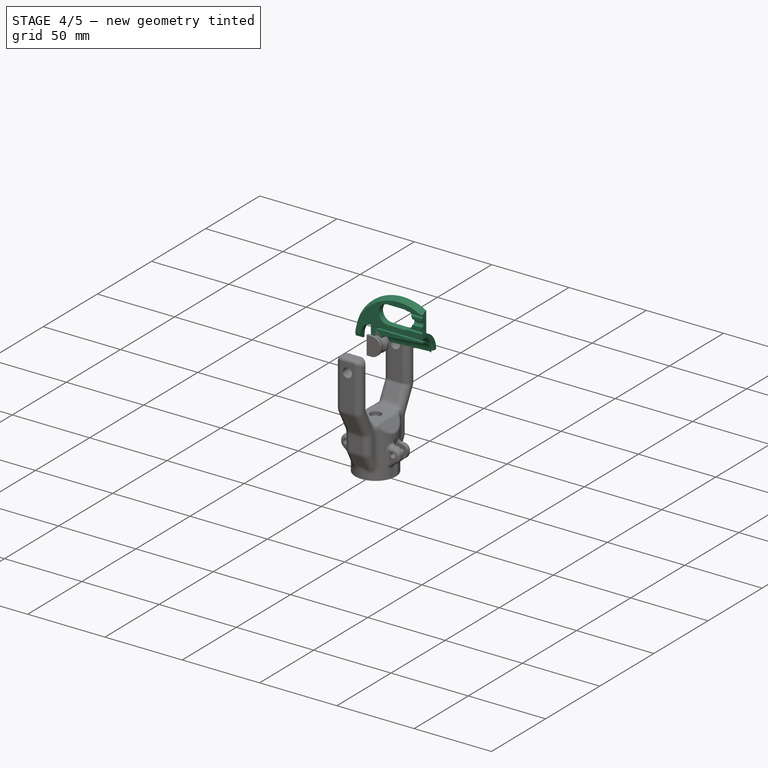
[diagram: stage 4 of 5 — iso view after this stage's code; geometry added in this stage tinted green]
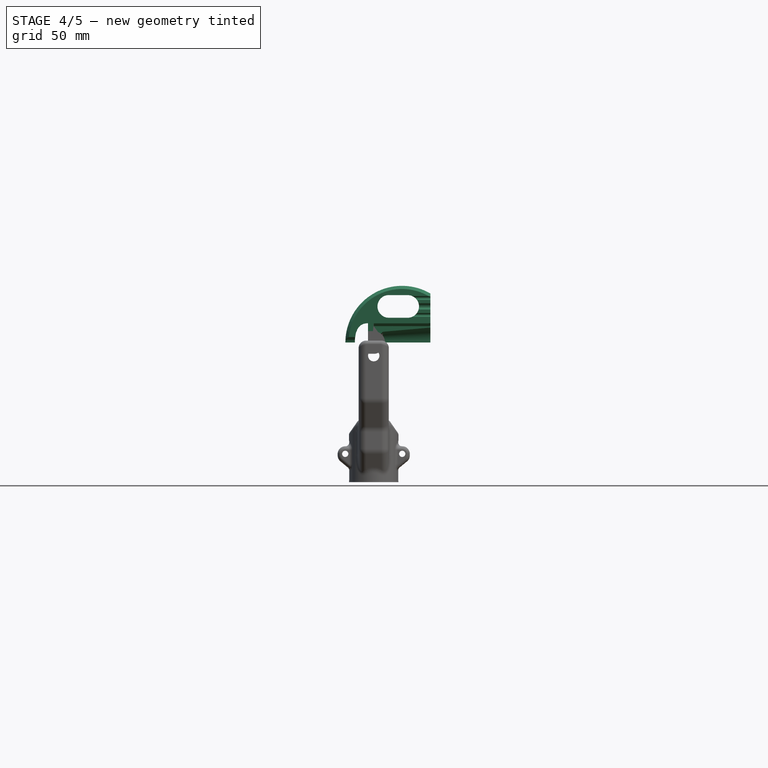
[diagram: stage 4 of 5 — front view after this stage's code; geometry added in this stage tinted green]
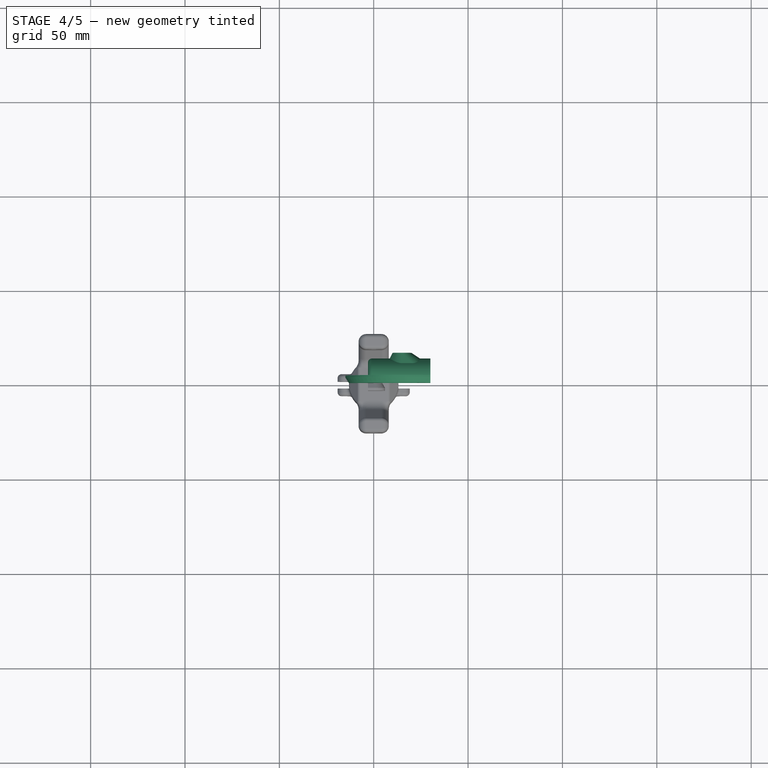
[diagram: stage 4 of 5 — top view after this stage's code; geometry added in this stage tinted green]
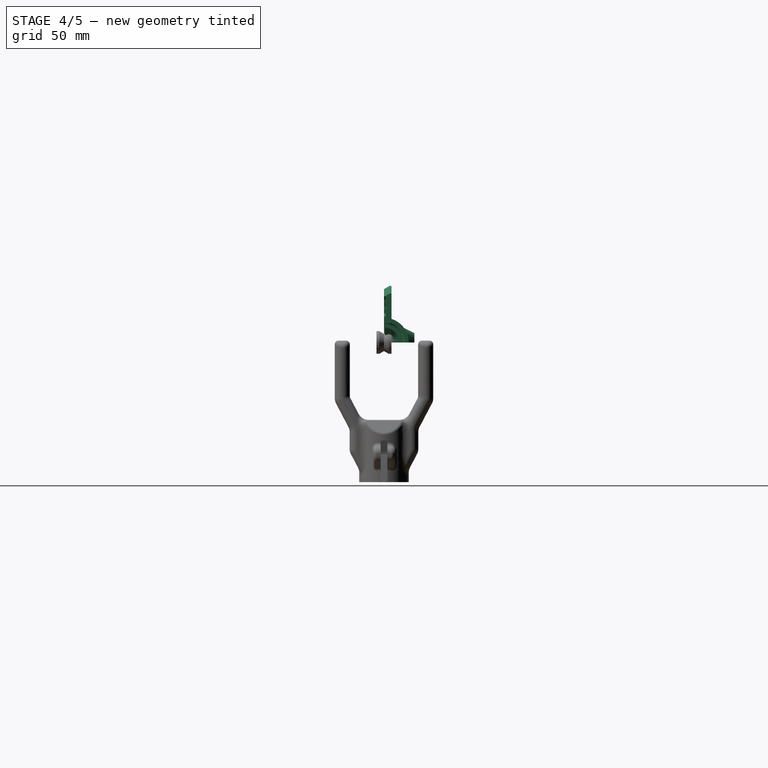
[diagram: stage 4 of 5 — right view after this stage's code; geometry added in this stage tinted green]
FEATURE [Sketcher::SketchObject] Sketch022
  ArcFitTolerance = 1e-06
  AttachmentSupport = -> [Pad006]
  FullyConstrained = true
  MakeInternals = false
  MapMode = 5
  Placement = pos=(-3,7e-16,-1.5e-15) rot=(0.57735,0.57735,-0.57735;4.18879rad)
  expr: Constraints[1] = VarSet.M3_d
  sketch-geometry (1):
    g0: Circle CenterX=0 CenterY=0 CenterZ=0 NormalX=0 NormalY=0 NormalZ=1 AngleXU=0 Radius=1.65
  constraints (2):
    c: Coincident(g0,g-1)
    c: Diameter(g0) = 3.3
FEATURE [PartDesign::Pocket] Pocket012
  BaseFeature = -> Pad006
  Direction = (1,0,0)
  Length = 6
  Length2 = 5
  Placement = pos=(0,0,0) rot=(1,1,1;2.0944rad)
  Profile = -> Sketch022
  ReferenceAxis = -> Sketch022 [N_Axis]
  Refine = true
  Suppressed = false
  Type = 0
FEATURE [PartDesign::Body] Body001  label="cap_junction__1_4"
  AllowCompound = false
  Group = -> [Sketch001,Revolution,Sketch002,Pocket,Sketch028,Pocket014,Sketch029,Pocket015]
  Origin = -> Origin002
  Tip = -> Pocket015
FEATURE [PartDesign::FeatureBase] Clone
  BaseFeature = -> Body001
  Suppressed = false
FEATURE [PartDesign::Pad] Pad005
  BaseFeature = -> Clone
  Direction = (0,-1,2e-16)
  Length = 4
  Length2 = 10
  Profile = -> Sketch007
  ReferenceAxis = -> Sketch007 [N_Axis]
  Refine = true
  Reversed = true
  Suppressed = false
  Type = 0
FEATURE [Sketcher::SketchObject] Sketch010
  ArcFitTolerance = 1e-06
  AttachmentOffset = pos=(0,0,15) rot=(0,0,1;0rad)
  AttachmentSupport = -> [YZ_Plane003]
  ExternalGeometry = -> [Pad005]
  FullyConstrained = true
  MakeInternals = false
  MapMode = 5
  Placement = pos=(15,0,0) rot=(0.57735,0.57735,0.57735;2.0944rad)
  expr: .AttachmentOffset.Base.z = VarSet.j_rot_x
  expr: Constraints[16] = VarSet.j_ca_th / 2 - 1 mm
  sketch-geometry (6):
    g0: LineSegment StartX=0.2 StartY=28.3834 StartZ=0 EndX=7.5 EndY=32.5981 EndZ=0
    g1: LineSegment StartX=7.5 StartY=32.5981 StartZ=0 EndX=0 EndY=32.5981 EndZ=0
    g2: ArcOfCircle CenterX=0 CenterY=28.7298 CenterZ=0 NormalX=0 NormalY=0 NormalZ=1 AngleXU=0 Radius=0.4 StartAngle=4.71239 EndAngle=5.23599
    g3: LineSegment StartX=0 StartY=32.5981 StartZ=0 EndX=0 EndY=28.3298 EndZ=0
    g4: LineSegment [constr] StartX=4 StartY=30 StartZ=0 EndX=0 EndY=30 EndZ=0
    g5: GeomPoint [constr] X=3 Y=30 Z=0
  constraints (17):
    c: Horizontal(g1)
    c: Tangent(g0,g2) = -1.5708
    c: Radius(g2) = 0.4
    c: PointOnObject(g3,g-2)
    c: Vertical(g3)
    c: Coincident(g2,g3)
    c: Angle(g0,g3) = 1.0472
    c: Coincident(g1,g0)
    c: Coincident(g3,g1)
    c: DistanceX(g1,g1) = 7.5
    c: PointOnObject(g2,g3)
    c: Coincident(g4,g-3)
    c: PointOnObject(g4,g3)
    c: Horizontal(g4)
    c: PointOnObject(g5,g0)
    c: PointOnObject(g5,g4)
    c: DistanceX(g-1,g5) = 3
FEATURE [PartDesign::Groove] Groove
  Angle = 360
  Angle2 = 60
  Axis = (0,1,0)
  Base = (15,0,0)
  BaseFeature = -> Pad005
  Profile = -> Sketch010
  ReferenceAxis = -> Sketch010 [H_Axis]
  Refine = true
  Suppressed = false
  Type = 0
FEATURE [PartDesign::Pocket] Pocket008
  BaseFeature = -> Groove
  Direction = (-1,0,0)
  Length = 20
  Length2 = 5
  Profile = -> Sketch016
  ReferenceAxis = -> Sketch016 [N_Axis]
  Refine = true
  Suppressed = false
  Type = 0
FEATURE [PartDesign::Pocket] Pocket009
  BaseFeature = -> Pocket008
  Direction = (-1,0,0)
  Length = 15
  Length2 = 5
  Profile = -> Sketch017
  ReferenceAxis = -> Sketch017 [N_Axis]
  Refine = true
  Suppressed = false
  Type = 0
FEATURE [PartDesign::AdditiveLoft] AdditiveLoft
  BaseFeature = -> Pocket009
  Closed = false
  Profile = -> Sketch008
  Refine = true
  Ruled = false
  Sections = -> [Sketch018]
  Suppressed = false
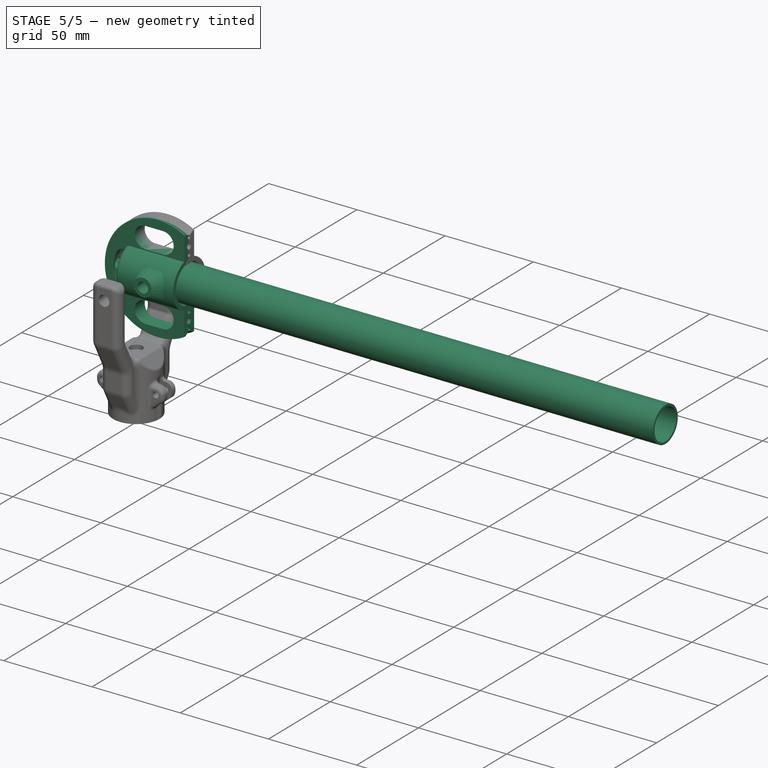
[diagram: stage 5 of 5 — iso view after this stage's code; geometry added in this stage tinted green]
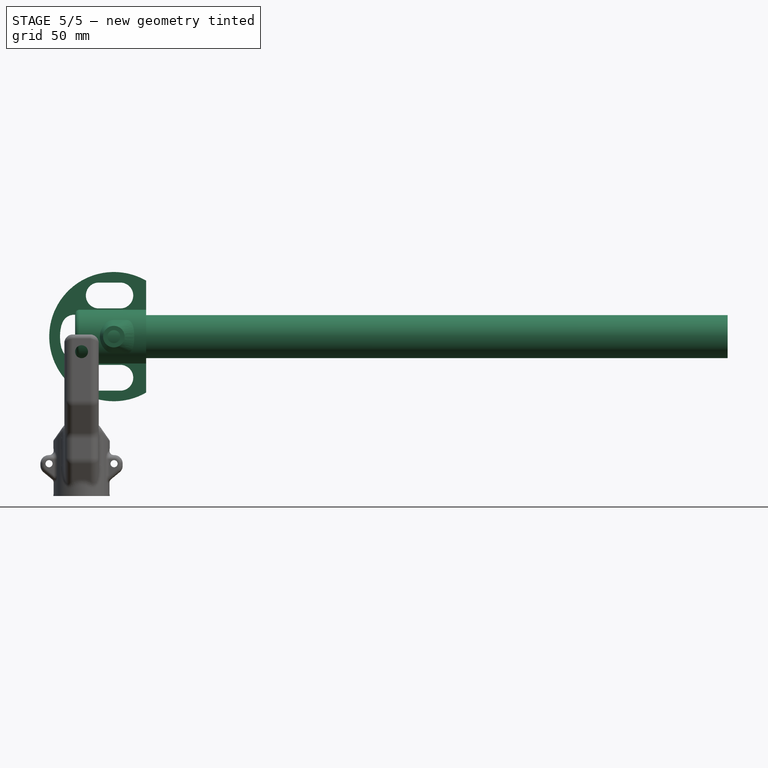
[diagram: stage 5 of 5 — front view after this stage's code; geometry added in this stage tinted green]
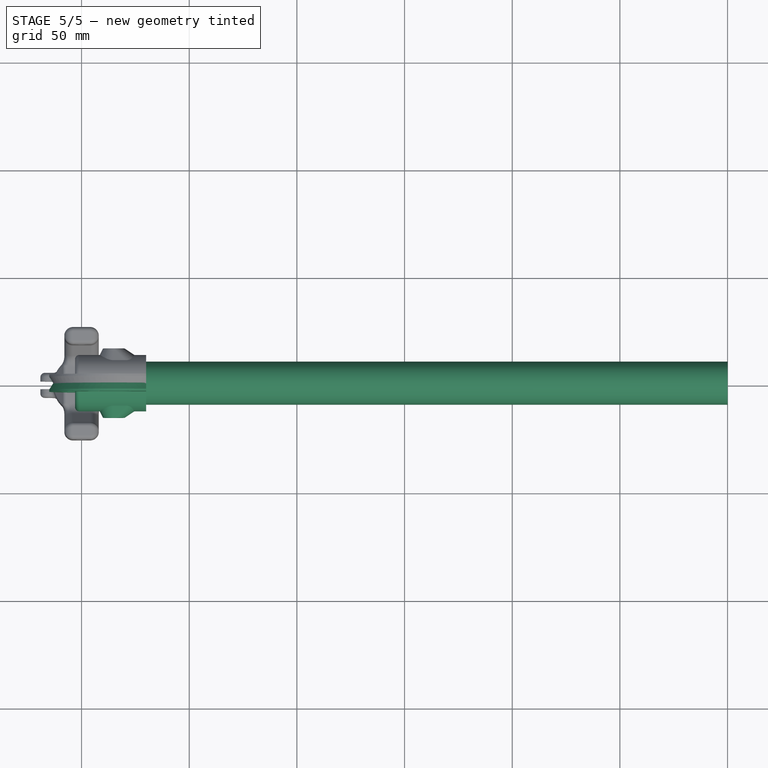
[diagram: stage 5 of 5 — top view after this stage's code; geometry added in this stage tinted green]
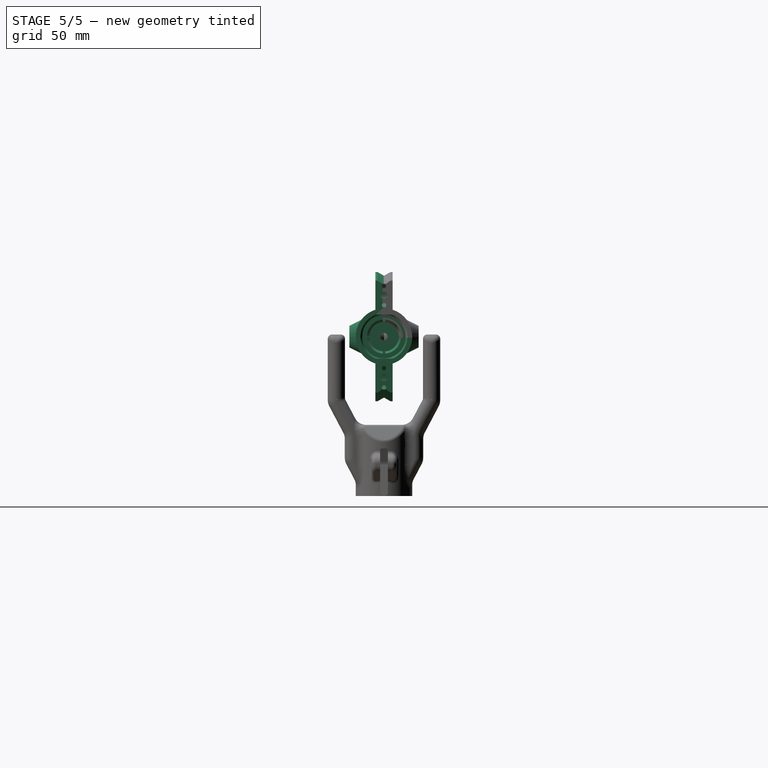
[diagram: stage 5 of 5 — right view after this stage's code; geometry added in this stage tinted green]
FEATURE [Sketcher::SketchObject] Sketch002
  ArcFitTolerance = 1e-06
  AttachmentSupport = -> [YZ_Plane001]
  FullyConstrained = true
  MakeInternals = false
  MapMode = 5
  Placement = pos=(0,0,0) rot=(0.57735,0.57735,0.57735;2.0944rad)
  expr: Constraints[13] = VarSet.j_m_od / 2 + 1 mm
  sketch-geometry (6):
    g0: LineSegment StartX=0 StartY=0 StartZ=0 EndX=0 EndY=9.7 EndZ=0
    g1: LineSegment StartX=0 StartY=9.7 StartZ=0 EndX=0.5 EndY=9.7 EndZ=0
    g2: LineSegment StartX=0.5 StartY=9.7 StartZ=0 EndX=0.5 EndY=0.5 EndZ=0
    g3: LineSegment StartX=0.5 StartY=0.5 StartZ=0 EndX=9.7 EndY=0.5 EndZ=0
    g4: LineSegment StartX=9.7 StartY=0.5 StartZ=0 EndX=9.7 EndY=0 EndZ=0
    g5: LineSegment StartX=9.7 StartY=0 StartZ=0 EndX=0 EndY=0 EndZ=0
  constraints (17):
    c: Coincident(g-1,g0)
    c: PointOnObject(g0,g-2)
    c: Coincident(g0,g1)
    c: Horizontal(g1)
    c: Coincident(g1,g2)
    c: Vertical(g2)
    c: Coincident(g2,g3)
    c: Horizontal(g3)
    c: Coincident(g3,g4)
    c: Vertical(g4)
    c: PointOnObject(g5,g-1)
    c: Coincident(g5,g0)
    c: Distance(g1,g1) = 0.5
    c: DistanceY(g0,g0) = 9.7
    c: Coincident(g4,g5)
    c: Equal(g1,g4)
    c: Equal(g0,g5)
FEATURE [Sketcher::SketchObject] Sketch
  ArcFitTolerance = 1e-06
  AttachmentSupport = -> [YZ_Plane]
  FullyConstrained = true
  MakeInternals = false
  MapMode = 5
  Placement = pos=(0,0,0) rot=(0.57735,0.57735,0.57735;2.0944rad)
  expr: Constraints[2] = VarSet.t_id
  expr: Constraints[3] = VarSet.t_od
  sketch-geometry (2):
    g0: Circle CenterX=0 CenterY=0 CenterZ=0 NormalX=0 NormalY=0 NormalZ=1 AngleXU=0 Radius=10
    g1: Circle CenterX=0 CenterY=0 CenterZ=0 NormalX=0 NormalY=0 NormalZ=1 AngleXU=0 Radius=8.8
  constraints (4):
    c: Coincident(g0,g-1)
    c: Coincident(g1,g0)
    c: Diameter(g1) = 17.6
    c: Diameter(g0) = 20
FEATURE [PartDesign::Pad] Pad
  Direction = (1,0,0)
  Length = 300
  Length2 = 10
  Placement = pos=(0,0,0) rot=(1,1,1;2.0944rad)
  Profile = -> Sketch
  ReferenceAxis = -> Sketch [N_Axis]
  Refine = true
  Suppressed = false
  Type = 0
  expr: Length = VarSet.t_len
FEATURE [PartDesign::Body] Body  label="Tube"
  AllowCompound = false
  Group = -> [Sketch,Pad]
  Origin = -> Origin
  Tip = -> Pad
FEATURE [Sketcher::SketchObject] Sketch003
  ArcFitTolerance = 1e-06
  AttachmentSupport = -> [XZ_Plane002]
  FullyConstrained = true
  MakeInternals = false
  MapMode = 5
  Placement = pos=(0,0,0) rot=(1,0,0;1.5708rad)
  expr: Constraints[17] = VarSet.cone_angl
  expr: Constraints[7] = VarSet.j_f_len * 0.6
  expr: Constraints[8] = VarSet.j_m_id / 2 + 0.5 mm
  sketch-geometry (7):
    g0: LineSegment StartX=2.73853 StartY=6.43959 StartZ=0 EndX=18 EndY=7.7748 EndZ=0
    g1: LineSegment StartX=0 StartY=3.45101 StartZ=0 EndX=0 EndY=1.7 EndZ=0
    g2: LineSegment StartX=0 StartY=1.7 StartZ=0 EndX=18 EndY=1.7 EndZ=0
    g3: LineSegment StartX=18 StartY=1.7 StartZ=0 EndX=18 EndY=7.7748 EndZ=0
    g4: ArcOfCircle [constr] CenterX=3 CenterY=3.45101 CenterZ=0 NormalX=0 NormalY=0 NormalZ=1 AngleXU=0 Radius=3 StartAngle=1.65806 EndAngle=3.14159
    g5: GeomPoint [constr] X=0 Y=6.2 Z=0
    g6: LineSegment StartX=2.73853 StartY=6.43959 StartZ=0 EndX=0 EndY=3.45101 EndZ=0
  constraints (18):
    c: PointOnObject(g5,g-2)
    c: Vertical(g1)
    c: Coincident(g2,g1)
    c: Horizontal(g2)
    c: Coincident(g3,g2)
    c: Coincident(g3,g0)
    c: Vertical(g3)
    c: DistanceX(g-1,g0) = 18
    c: DistanceY(g-1,g5) = 6.2
    c: DistanceY(g-1,g1) = 1.7
    c: PointOnObject(g5,g0)
    c: PointOnObject(g5,g1)
    c: Tangent(g0,g4) = 1.5708
    c: Tangent(g1,g4) = -1.5708
    c: Coincident(g6,g0)
    c: Coincident(g6,g1)
    c: Radius(g4) = 3
    c: Angle(g-1,g0) = 0.0872665
FEATURE [PartDesign::Revolution] Revolution001
  Angle = 360
  Angle2 = 60
  Axis = (1,0,0)
  Base = (0,0,0)
  Placement = pos=(0,0,0) rot=(1,0,0;1.5708rad)
  Profile = -> Sketch003
  ReferenceAxis = -> Sketch003 [H_Axis]
  Refine = true
  Suppressed = false
  Type = 0
FEATURE [Sketcher::SketchObject] Sketch004
  ArcFitTolerance = 1e-06
  AttachmentOffset = pos=(0,0,-5) rot=(0,0,1;0rad)
  AttachmentSupport = -> [Revolution001]
  FullyConstrained = true
  MakeInternals = false
  MapMode = 5
  Placement = pos=(13,0,1.1e-15) rot=(0.707107,0,0.707107;3.14159rad)
  expr: Constraints[10] = VarSet.M3_lh
  sketch-geometry (7):
    g0: LineSegment StartX=2.9 StartY=-1.67505 StartZ=0 EndX=2.9 EndY=8.32495 EndZ=0
    g1: LineSegment StartX=2.9 StartY=8.32495 StartZ=0 EndX=-4e-16 EndY=9.99889 EndZ=0
    g2: LineSegment StartX=-4e-16 StartY=9.99889 StartZ=0 EndX=-2.9 EndY=8.32495 EndZ=0
    g3: LineSegment StartX=-2.9 StartY=8.32495 StartZ=0 EndX=-2.9 EndY=-1.67505 EndZ=0
    g4: LineSegment StartX=-2.9 StartY=-1.67505 StartZ=0 EndX=0 EndY=-3.349 EndZ=0
    g5: LineSegment StartX=0 StartY=-3.349 StartZ=0 EndX=2.9 EndY=-1.67505 EndZ=0
    g6: Circle [constr] CenterX=0 CenterY=0 CenterZ=0 NormalX=0 NormalY=0 NormalZ=1 AngleXU=0 Radius=3.349
  constraints (20):
    c: Coincident(g0,g1)
    c: Coincident(g1,g2)
    c: Coincident(g2,g3)
    c: Coincident(g3,g4)
    c: Coincident(g4,g5)
    c: Coincident(g5,g0)
    c: PointOnObject(g3,g6)
    c: PointOnObject(g4,g6)
    c: PointOnObject(g5,g6)
    c: Coincident(g6,g-1)
    c: DistanceX(g2,g0) = 5.8
    c: Equal(g4,g5)
    c: Equal(g5,g1)
    c: Equal(g1,g2)
    c: Equal(g3,g0)
    c: DistanceY(g4,g-1) = 3.349
    c: DistanceY(g3,g3) = 10
    c: PointOnObject(g4,g-2)
    c: Vertical(g3)
    c: Vertical(g0)
FEATURE [PartDesign::Pocket] Pocket001
  BaseFeature = -> Revolution001
  Direction = (-1,0,2e-16)
  Length = 2.7
  Length2 = 5
  Placement = pos=(0,0,0) rot=(1,0,0;1.5708rad)
  Profile = -> Sketch004
  ReferenceAxis = -> Sketch004 [N_Axis]
  Refine = true
  Suppressed = false
  Type = 0
  expr: Length = VarSet.M3_th
FEATURE [PartDesign::Pocket] Pocket010
  BaseFeature = -> AdditiveLoft
  Direction = (0,1,-2e-16)
  Length = 13
  Length2 = 5
  Profile = -> Sketch019
  ReferenceAxis = -> Sketch019 [N_Axis]
  Refine = true
  Suppressed = false
  Type = 1
FEATURE [PartDesign::Body] Body003  label="cable_junction_1_4"
  AllowCompound = false
  Group = -> [Clone,Sketch007,Sketch008,Sketch010,Sketch016,Pad005,Groove,Pocket008,Sketch017,Pocket009,Sketch018,AdditiveLoft,Sketch019,Pocket010]
  Origin = -> Origin006
  Tip = -> Pocket010
FEATURE [PartDesign::FeatureBase] Clone001
  BaseFeature = -> Body003
  Suppressed = false
FEATURE [PartDesign::MultiTransform] MultiTransform
  BaseFeature = -> Clone001
  Refine = true
  Suppressed = false
  TransformMode = 1
  Transformations = -> [Mirrored,Mirrored001]
FEATURE [PartDesign::Pocket] Pocket011
  BaseFeature = -> MultiTransform
  Direction = (-1,0,0)
  Length = 2.7
  Length2 = 5
  Profile = -> Sketch021
  ReferenceAxis = -> Sketch021 [N_Axis]
  Refine = true
  Reversed = true
  Suppressed = false
  Type = 0
  expr: Length = VarSet.M3_th
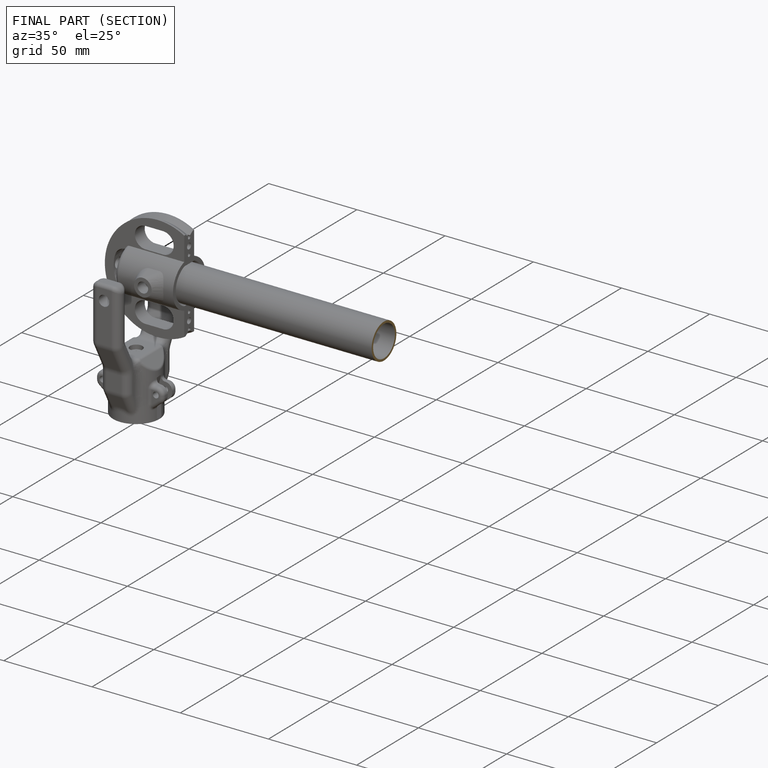
[diagram: finished part — half-section view (interior)]
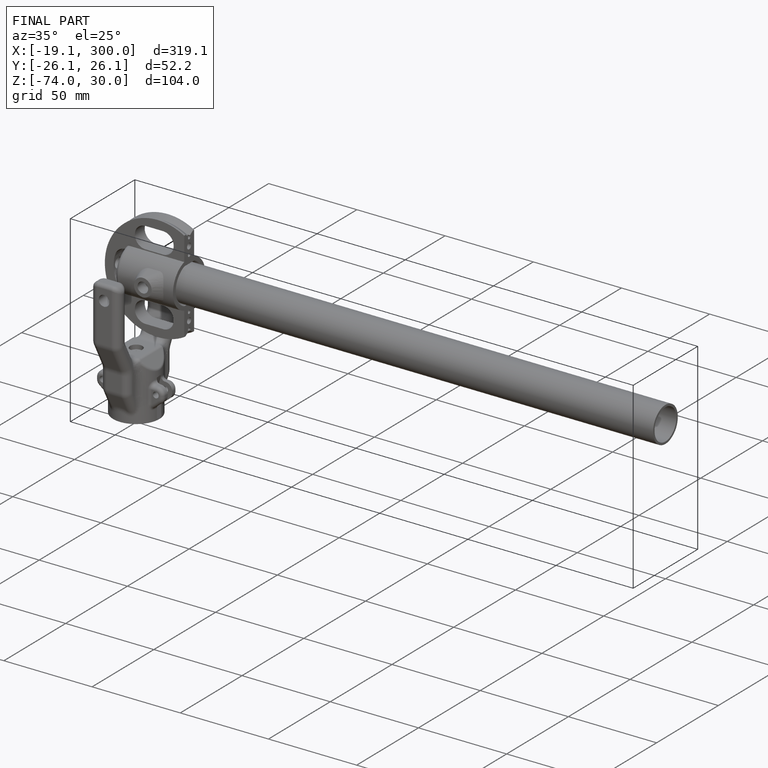
[diagram: finished part — iso view with bounding-box wireframe]
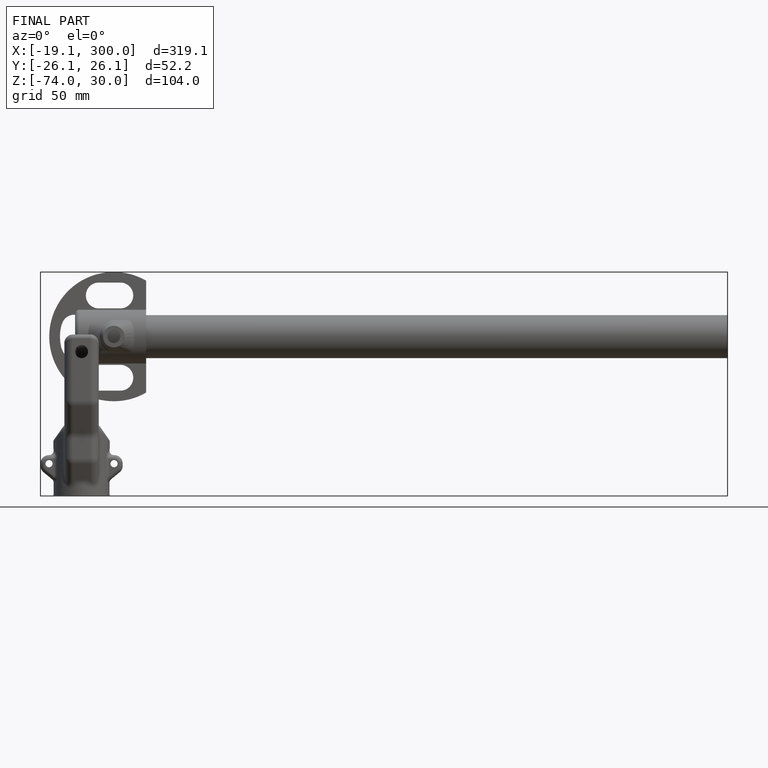
[diagram: finished part — front view with bounding-box wireframe]
